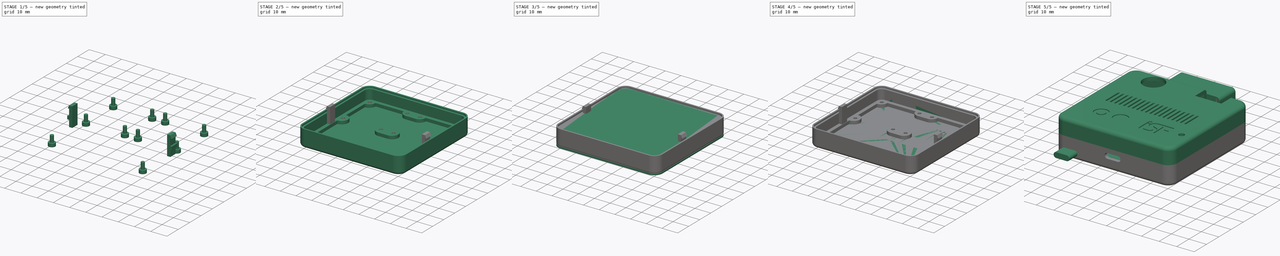
[diagram: build sequence overview — one tinted view per stage of 5, left to right]
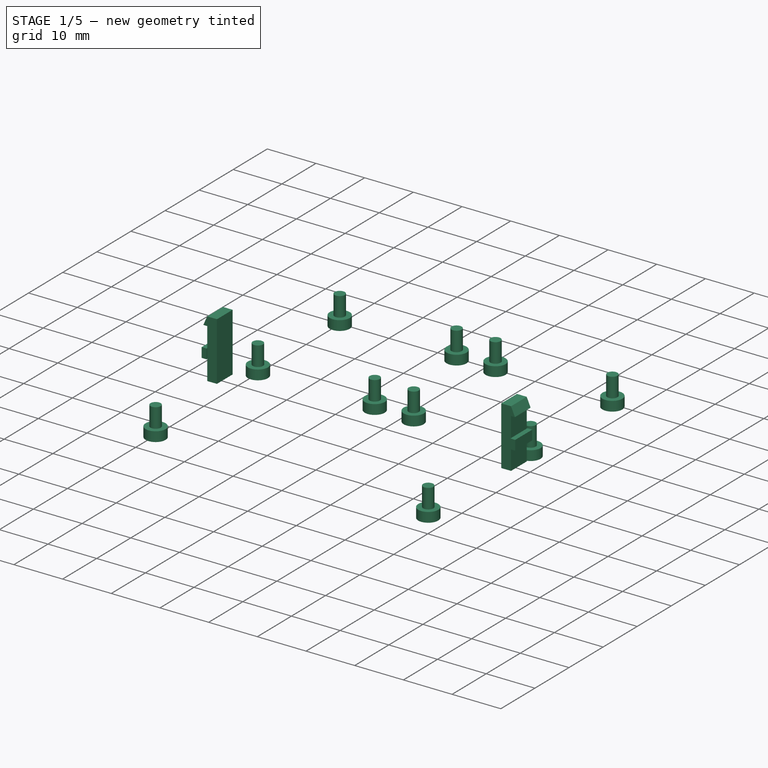
[diagram: stage 1 of 5 — iso view after this stage's code; geometry added in this stage tinted green]
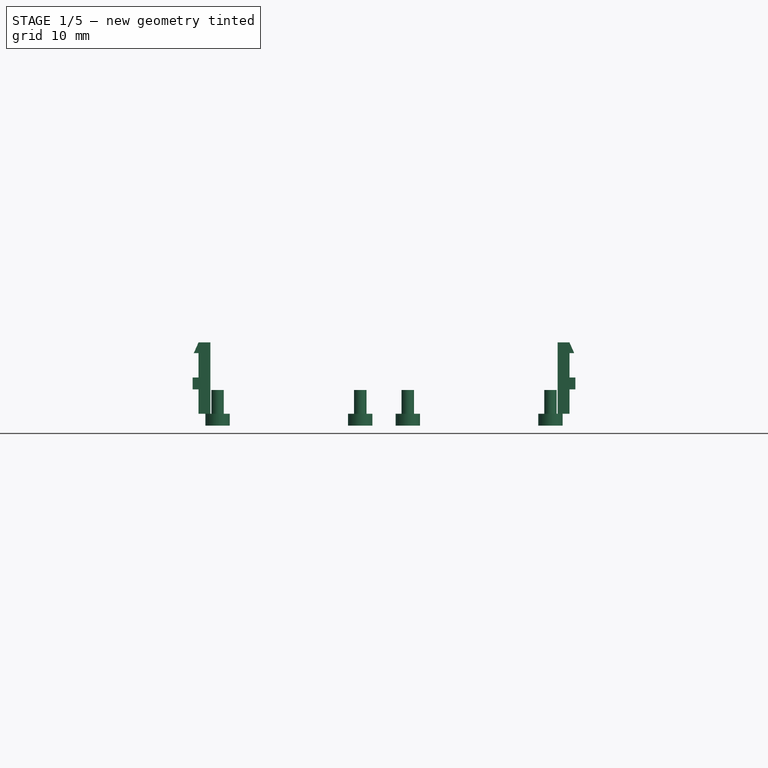
[diagram: stage 1 of 5 — front view after this stage's code; geometry added in this stage tinted green]
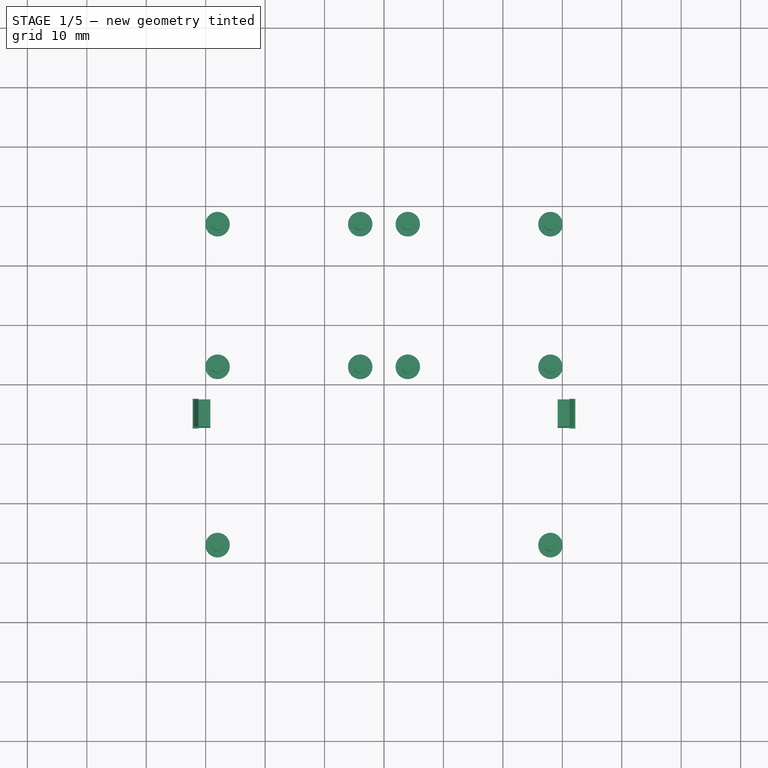
[diagram: stage 1 of 5 — top view after this stage's code; geometry added in this stage tinted green]
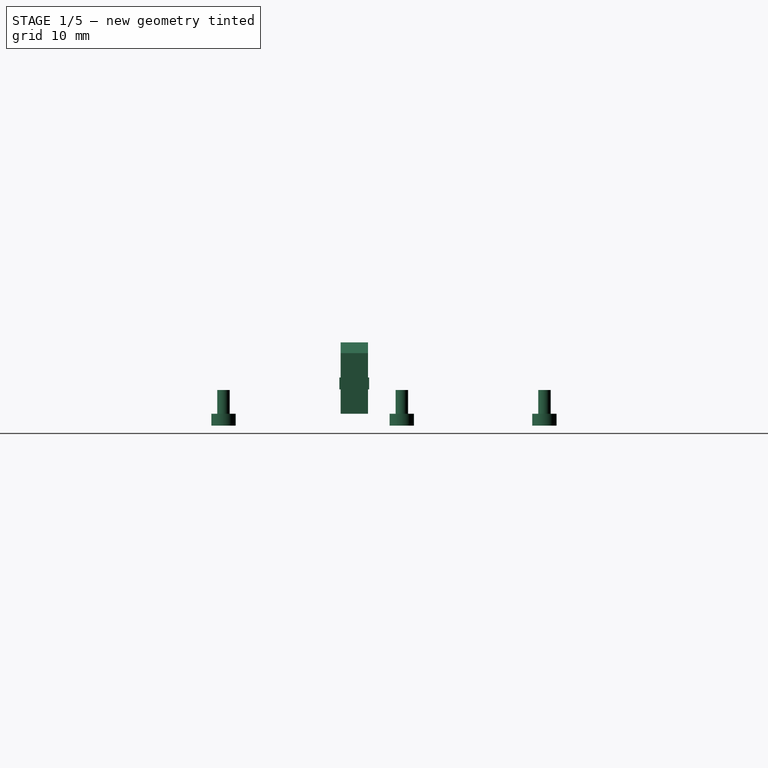
[diagram: stage 1 of 5 — right view after this stage's code; geometry added in this stage tinted green]
FCSTD DOCUMENT  (FreeCAD 0.21R33771 (Git))
Label: SensorBoard
License: Creative Commons Attribution-ShareAlike 4.0
LicenseURL: https://creativecommons.org/licenses/by-sa/4.0/
objects: Sketcher::SketchObject×16, PartDesign::Pad×15, PartDesign::Body×14, Part::Cut×12, Part::MultiFuse×10, Part::FeaturePython×10, PartDesign::Fillet×5, Part::Feature×5, Part::Extrusion×5, Part::Mirroring×3, Part::Box×2, Part::Cylinder×2, Spreadsheet::Sheet×1, PartDesign::Pocket×1, Part::Compound×1
note: 120 computed .brp shape members not serialized (recipe doc carries the construction recipe); baked Part::Feature solids carry a one-line shape summary decoded from their .brp

FEATURE [Sketcher::SketchObject] Sketch003
  FullyConstrained = true
  MapMode = 5
  Support = -> [XY_Plane003]
  expr: Constraints[1] = Spreadsheet.ScrewHeadDiameter
  sketch-geometry (1):
    g0: Circle CenterX=0 CenterY=0 CenterZ=0 NormalX=0 NormalY=0 NormalZ=1 AngleXU=0 Radius=2.05
  constraints (2):
    c: Coincident(g0,g-1)
    c: Diameter(g0) = 4.1
FEATURE [PartDesign::Pad] Pad003
  Direction = (1,1,1)
  Length = 2
  Length2 = 100
  Profile = -> Sketch003
  Type = 0
  expr: Length = Spreadsheet.ScrewHeadDepth
FEATURE [Sketcher::SketchObject] Sketch004
  FullyConstrained = true
  MapMode = 5
  Placement = pos=(0,0,2) rot=(0,0,1;0rad)
  Support = -> [Pad003]
  expr: Constraints[1] = Spreadsheet.ScrewDiameter
  sketch-geometry (1):
    g0: Circle CenterX=0 CenterY=0 CenterZ=0 NormalX=0 NormalY=0 NormalZ=1 AngleXU=0 Radius=1.05
  constraints (2):
    c: Coincident(g0,g-1)
    c: Diameter(g0) = 2.1
FEATURE [PartDesign::Pad] Pad004
  BaseFeature = -> Pad003
  Direction = (1,1,1)
  Length = 4
  Length2 = 100
  Profile = -> Sketch004
  Type = 0
  expr: Length = Spreadsheet.ScrewLength
FEATURE [PartDesign::Body] Body009  label="BottomJointBody"
  Group = -> [Sketch010,Pad010]
  Origin = -> Origin009
  Placement = pos=(0,0,10.1) rot=(0,0,1;0rad)
  Tip = -> Pad010
  expr: .Placement.Base.z = Spreadsheet.HousingDepth / 2
FEATURE [Part::Box] Box  label="LockCutout1"
  AttacherType = Attacher::AttachEngine3D
  Height = 2
  Length = 1
  Placement = pos=(-32.2,-7.5,6.1) rot=(0,0,1;0rad)
  Width = 5
  expr: .Placement.Base.x = -(Spreadsheet.HousingWidth / 2 - Spreadsheet.WallThickness + Spreadsheet.LockDepth)
  expr: .Placement.Base.y = -(Spreadsheet.LockYOffset + Spreadsheet.LockWidth / 2)
  expr: .Placement.Base.z = Spreadsheet.LockZPosition
  expr: Height = Spreadsheet.LockHeight
  expr: Length = Spreadsheet.LockDepth
  expr: Width = Spreadsheet.LockWidth
FEATURE [PartDesign::Body] Body011  label="TopBaseBody"
  Group = -> [Sketch012,Pad012,Fillet003,Fillet004,Sketch013,Pocket]
  Origin = -> Origin011
  Tip = -> Pocket
FEATURE [Sketcher::SketchObject] MirroredSketch
  FullyConstrained = true
  Placement = pos=(0,0,0) rot=(1,0,0;1.5708rad)
  expr: Constraints[10] = Spreadsheet.HousingDepth / 2 - Spreadsheet.WallThickness + 2 * Spreadsheet.LockHeight - Spreadsheet.LockTolerance / 2
  expr: Constraints[11] = Spreadsheet.LockHeight - Spreadsheet.LockTolerance
  expr: Constraints[14] = Spreadsheet.LockDepth - Spreadsheet.LockTolerance
  sketch-geometry (6):
    g0: LineSegment StartX=0 StartY=10.2 StartZ=0 EndX=0.8 EndY=10.2 EndZ=0
    g1: LineSegment StartX=0.8 StartY=10.2 StartZ=0 EndX=0 EndY=12 EndZ=0
    g2: LineSegment StartX=0 StartY=12 StartZ=0 EndX=-2 EndY=12 EndZ=0
    g3: LineSegment StartX=-2 StartY=12 StartZ=0 EndX=-2 EndY=0 EndZ=0
    g4: LineSegment StartX=-2 StartY=0 StartZ=0 EndX=0 EndY=0 EndZ=0
    g5: LineSegment StartX=0 StartY=0 StartZ=0 EndX=0 EndY=10.2 EndZ=0
  constraints (17):
    c: Horizontal(g0)
    c: Coincident(g1,g0)
    c: Coincident(g2,g1)
    c: Horizontal(g2)
    c: Coincident(g3,g2)
    c: Vertical(g3)
    c: Horizontal(g4)
    c: Coincident(g5,g4)
    c: Coincident(g5,g0)
    c: Coincident(g4,g3)
    c: DistanceY(g3,g3) = 12
    c: DistanceY(g0,g1) = 1.8
    c: Coincident(g4,g-1)
    c: DistanceX(g4,g4) = 2
    c: DistanceX(g0,g0) = 0.8
    c: Vertical(g5)
    c: PointOnObject(g1,g-2)
FEATURE [PartDesign::Pad] Pad013
  Direction = (1,1,1)
  Length = 4.6
  Length2 = 100
  Placement = pos=(0,0,0) rot=(1,0,0;1.5708rad)
  Profile = -> MirroredSketch
  Type = 0
  expr: Length = Spreadsheet.LockWidth - 2 * Spreadsheet.LockTolerance
FEATURE [PartDesign::Body] Body015  label="VentilationBody001"
  Group = -> [Sketch015,Pad016]
  Origin = -> Origin015
  Tip = -> Pad016
FEATURE [Part::FeaturePython] Array006  label="TopVentilationArray"  # Draft array (typed FeaturePython)
  AlwaysSyncPlacement = false
  Angle = 360
  ArrayType = 0
  Axis = (0,0,1)
  Base = -> Body015
  Center = (0,0,0)
  Count = 19
  ExpandArray = false
  Fuse = false
  IntervalAxis = (0,0,0)
  IntervalX = (2.5,0,0)
  IntervalY = (0,0,0)
  IntervalZ = (0,0,100)
  NumberCircles = 3
  NumberPolar = 5
  NumberX = 19
  NumberY = 1
  NumberZ = 1
  Placement = pos=(-22.5,0,0) rot=(0,0,1;0rad)
  PlacementList = 19 placements: arithmetic series from (0,0,0) step (2.5,0,0) to (45,0,0)
  RadialDistance = 50
  ScaleList = (19) [(1,1,1),(1,1,1),(1,1,1),(1,1,1),(1,1,1),(1,1,1),(1,1,1),(1,1,1),(1,1,1),(1,1,1),(1,1,1),(1,1,1),(1,1,1),(1,1,1),(1,1,1),(1,1,1),(1,1,1),(1,1,1),+1 more]
  Symmetry = 1
  TangentialDistance = 25
FEATURE [Part::FeaturePython] Point  # WARN: FeaturePython — macro-defined, semantics opaque (R4)
  Placement = pos=(-28,-27,0) rot=(0,0,1;0rad)
  X = -28
  Y = -27
  Z = 0
FEATURE [Part::FeaturePython] Point001  # WARN: FeaturePython — macro-defined, semantics opaque (R4)
  Placement = pos=(-28,3,0) rot=(0,0,1;0rad)
  X = -28
  Y = 3
  Z = 0
FEATURE [Part::FeaturePython] Point002  # WARN: FeaturePython — macro-defined, semantics opaque (R4)
  Placement = pos=(-28,27,0) rot=(0,0,1;0rad)
  X = -28
  Y = 27
  Z = 0
FEATURE [Part::FeaturePython] Point003  # WARN: FeaturePython — macro-defined, semantics opaque (R4)
  Placement = pos=(-4,27,0) rot=(0,0,1;0rad)
  X = -4
  Y = 27
  Z = 0
FEATURE [Part::FeaturePython] Point004  # WARN: FeaturePython — macro-defined, semantics opaque (R4)
  Placement = pos=(4,27,0) rot=(0,0,1;0rad)
  X = 4
  Y = 27
  Z = 0
FEATURE [Part::FeaturePython] Point005  # WARN: FeaturePython — macro-defined, semantics opaque (R4)
  Placement = pos=(-4,3,0) rot=(0,0,1;0rad)
  X = -4
  Y = 3
  Z = 0
FEATURE [Part::FeaturePython] Point006  # WARN: FeaturePython — macro-defined, semantics opaque (R4)
  Placement = pos=(4,3,0) rot=(0,0,1;0rad)
  X = 4
  Y = 3
  Z = 0
FEATURE [Part::Compound] Compound  label="ScrewPointCompound"
  Links = -> [Point002,Point001,Point,Point003,Point004,Point006,Point005]
FEATURE [Part::FeaturePython] PointArray  label="ScrewPointArray"  # Draft array (typed FeaturePython)
  Base = -> Body003
  Count = 7
  PointObject = -> Compound
FEATURE [Part::Mirroring] Part__Mirroring  label="ScrewPointMirror"
  Base = (0,0,0)
  Normal = (1,0,0)
  Source = -> PointArray
FEATURE [Part::MultiFuse] Fusion008  label="ScrewFusion"
  Shapes = -> [PointArray,Part__Mirroring]
FEATURE [Part::Mirroring] Part__Mirroring001  label="LockCutout1 (Mirror #2)"
  Base = (0,0,0)
  Normal = (1,0,0)
  Source = -> Box
FEATURE [Part::MultiFuse] Fusion014  label="LockCutoutFusion"
  Shapes = -> [Box,Part__Mirroring001]
FEATURE [Part::Mirroring] Part__Mirroring002  label="TopLockBody (Mirror #3)"
  Base = (0,0,0)
  Normal = (1,0,0)
  Source = -> Body012
FEATURE [Part::MultiFuse] Fusion015  label="LockFusion"
  Shapes = -> [Part__Mirroring002,Body012]
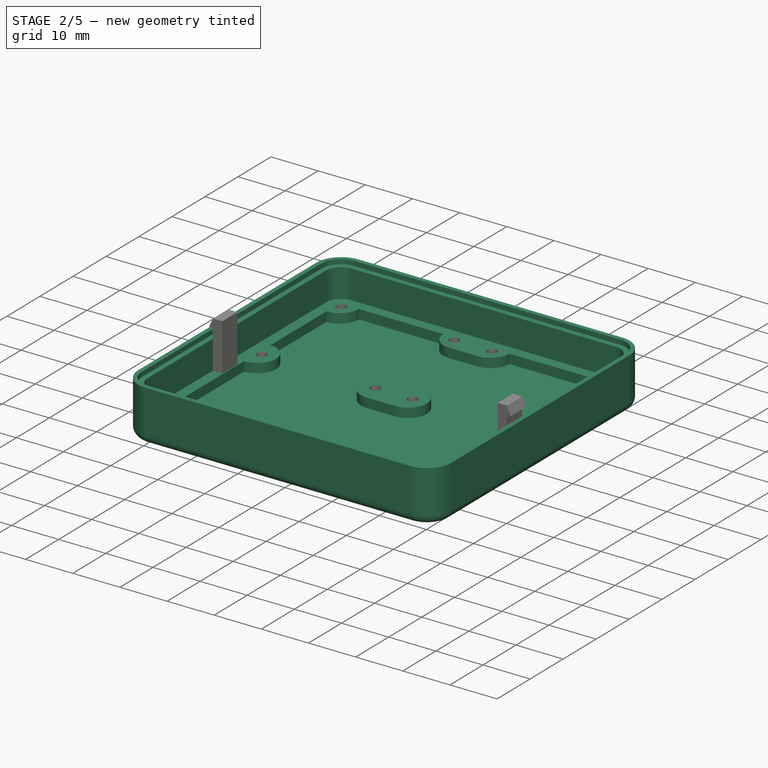
[diagram: stage 2 of 5 — iso view after this stage's code; geometry added in this stage tinted green]
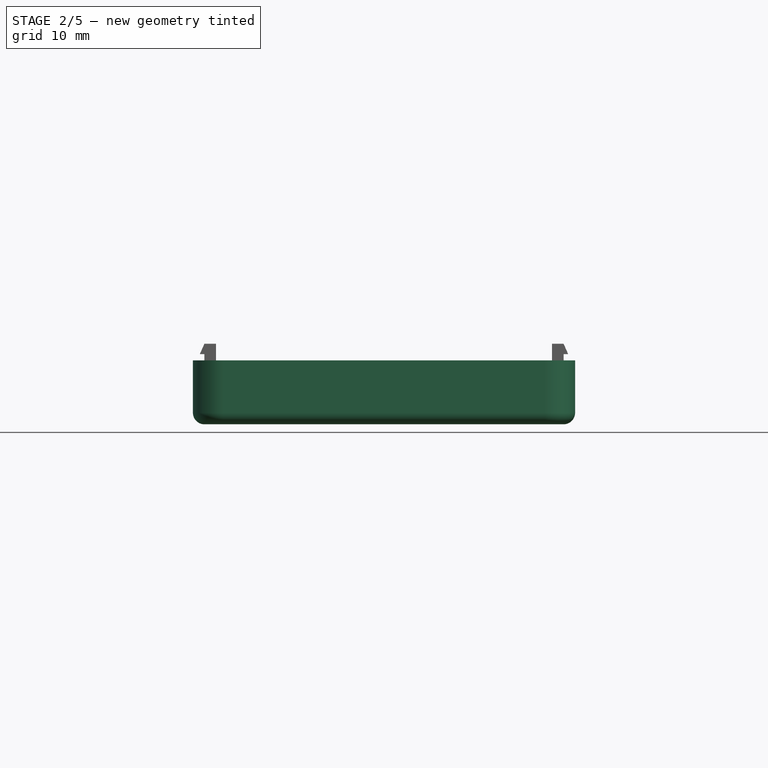
[diagram: stage 2 of 5 — front view after this stage's code; geometry added in this stage tinted green]
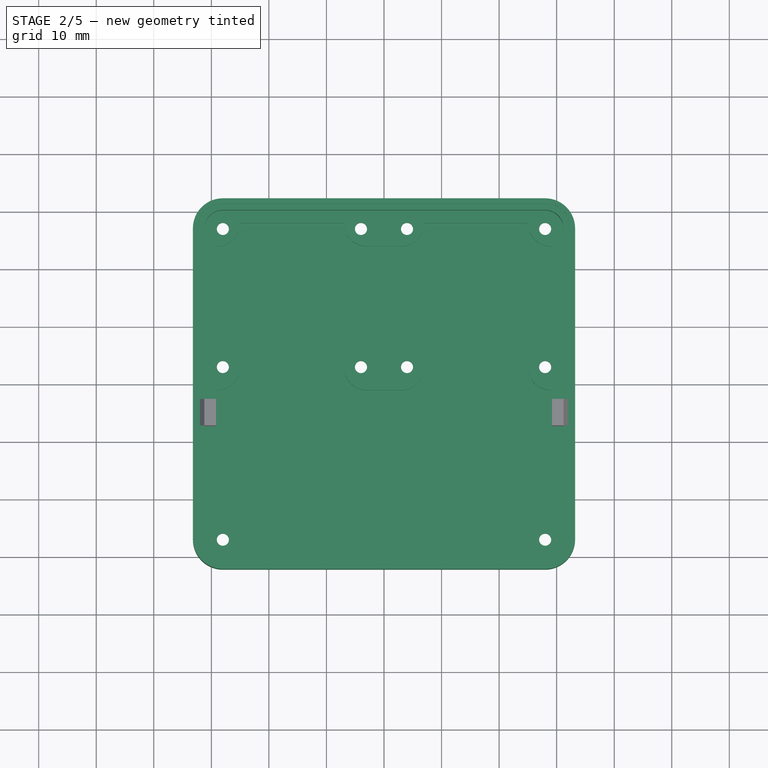
[diagram: stage 2 of 5 — top view after this stage's code; geometry added in this stage tinted green]
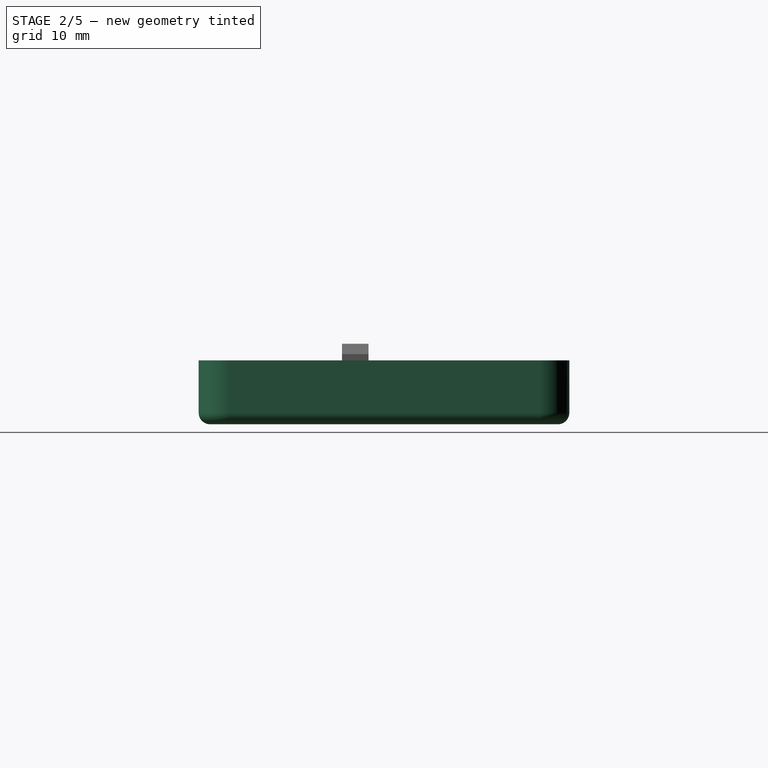
[diagram: stage 2 of 5 — right view after this stage's code; geometry added in this stage tinted green]
FEATURE [Spreadsheet::Sheet] Spreadsheet
  cells = A1='Board Width; B1(BoardWidth)=62; A2='Board Height; B2(BoardHeight)=60; A3='Board Thickness; B3(BoardThickness)=1.7; A4='Board Tolerance; B4(BoardTolerance)=0.2; A5='Board Cutout Width; B5(BoardCutoutWidth)==BoardWidth + 2 * BoardTolerance; A6='Board Cutout Height; B6(BoardCutoutHeight)==BoardHeight + 2 * BoardTolerance; A7='Board Corner Radius; B7(BoardCornerRadius)=3; A9='Component Height; B9(ComponentHeight)=12.5; A11='Sink Width; B11(SinkWidth)==BoardWidth - 4; A12='Sink Height; B12(SinkHeight)==BoardHeight - 4; A13='Sink Depth; B13(SinkDepth)=2; A15='Wall Thickness; B15(WallThickness)=2; A16='Wall Joint Height; B16(WallJointHeight)=1; A17='Wall Joint Width; B17(WallJointWidth)=0.9; A19='Housing Width; B19(HousingWidth)==BoardCutoutWidth + 2 * WallThickness; A20='Housing Height; B20(HousingHeight)==BoardCutoutHeight + 2 * WallThickness; A21='Housing Depth; B21(HousingDepth)==WallThickness + SinkDepth + BoardThickness + ComponentHeight + WallThickness; A23='Screw Diameter; B23(ScrewDiameter)=2.1; A24='Screw Length; B24(ScrewLength)=4; A25='Screw Head Diameter; B25(ScrewHeadDiameter)=4.1; A26='Screw Head Depth; B26(ScrewHeadDepth)=2; A28='Lock Width; B28(LockWidth)=5; A29='Lock Height; B29(LockHeight)=2; A30='Lock Depth; B30(LockDepth)=1; A31='Lock Tolerance; B31(LockTolerance)=0.2; A32='Lock Y Offset; B32(LockYOffset)=5; A33='Lock Z Position; B33(LockZPosition)==HousingDepth / 2 - 2 * LockHeight
FEATURE [Sketcher::SketchObject] Sketch
  FullyConstrained = true
  MapMode = 5
  Support = -> [XY_Plane]
  expr: Constraints[8] = Spreadsheet.HousingWidth
  expr: Constraints[9] = Spreadsheet.HousingHeight
  sketch-geometry (4):
    g0: LineSegment StartX=-33.2 StartY=32.2 StartZ=0 EndX=33.2 EndY=32.2 EndZ=0
    g1: LineSegment StartX=33.2 StartY=32.2 StartZ=0 EndX=33.2 EndY=-32.2 EndZ=0
    g2: LineSegment StartX=33.2 StartY=-32.2 StartZ=0 EndX=-33.2 EndY=-32.2 EndZ=0
    g3: LineSegment StartX=-33.2 StartY=-32.2 StartZ=0 EndX=-33.2 EndY=32.2 EndZ=0
  constraints (11):
    c: Coincident(g0,g1)
    c: Coincident(g1,g2)
    c: Coincident(g2,g3)
    c: Coincident(g3,g0)
    c: Horizontal(g0)
    c: Horizontal(g2)
    c: Vertical(g1)
    c: Vertical(g3)
    c: DistanceX(g0,g0) = 66.4
    c: DistanceY(g1,g1) = 64.4
    c: Symmetric(g0,g2,g-1)
FEATURE [PartDesign::Pad] Pad
  Direction = (1,1,1)
  Length = 10.1
  Length2 = 100
  Profile = -> Sketch
  Type = 0
  expr: Length = Spreadsheet.HousingDepth / 2
FEATURE [PartDesign::Fillet] Fillet
  Base = -> Pad [Edge8,Edge5,Edge2,Edge1]
  BaseFeature = -> Pad
  Radius = 5.2
  SupportTransform = false
  UseAllEdges = false
  expr: Radius = Spreadsheet.BoardCornerRadius + Spreadsheet.BoardTolerance + Spreadsheet.WallThickness
FEATURE [PartDesign::Fillet] Fillet001
  Base = -> Fillet [Edge9,Edge10,Edge5,Edge6]
  BaseFeature = -> Fillet
  Radius = 2
  SupportTransform = false
  UseAllEdges = false
FEATURE [PartDesign::Body] Body  label="BottomBody"
  Group = -> [Sketch,Pad,Fillet,Fillet001]
  Origin = -> Origin
  Tip = -> Fillet001
FEATURE [Sketcher::SketchObject] Sketch001
  FullyConstrained = true
  MapMode = 5
  Support = -> [XY_Plane001]
  expr: Constraints[8] = Spreadsheet.BoardCutoutWidth
  expr: Constraints[9] = Spreadsheet.BoardCutoutHeight
  sketch-geometry (4):
    g0: LineSegment StartX=-31.2 StartY=30.2 StartZ=0 EndX=31.2 EndY=30.2 EndZ=0
    g1: LineSegment StartX=31.2 StartY=30.2 StartZ=0 EndX=31.2 EndY=-30.2 EndZ=0
    g2: LineSegment StartX=31.2 StartY=-30.2 StartZ=0 EndX=-31.2 EndY=-30.2 EndZ=0
    g3: LineSegment StartX=-31.2 StartY=-30.2 StartZ=0 EndX=-31.2 EndY=30.2 EndZ=0
  constraints (11):
    c: Coincident(g0,g1)
    c: Coincident(g1,g2)
    c: Coincident(g2,g3)
    c: Coincident(g3,g0)
    c: Horizontal(g0)
    c: Horizontal(g2)
    c: Vertical(g1)
    c: Vertical(g3)
    c: DistanceX(g0,g0) = 62.4
    c: DistanceY(g1,g1) = 60.4
    c: Symmetric(g0,g2,g-1)
FEATURE [PartDesign::Pad] Pad001
  Direction = (1,1,1)
  Length = 6.1
  Length2 = 100
  Profile = -> Sketch001
  Type = 0
  expr: Length = Spreadsheet.HousingDepth / 2 - Spreadsheet.WallThickness - Spreadsheet.SinkDepth
FEATURE [PartDesign::Fillet] Fillet002
  Base = -> Pad001 [Edge8,Edge5,Edge2,Edge1]
  BaseFeature = -> Pad001
  Radius = 3.2
  SupportTransform = false
  UseAllEdges = false
  expr: Radius = Spreadsheet.BoardCornerRadius + Spreadsheet.BoardTolerance
FEATURE [PartDesign::Body] Body001  label="BoardCutoutBody"
  Group = -> [Sketch001,Pad001,Fillet002]
  Origin = -> Origin001
  Placement = pos=(0,0,4) rot=(0,0,1;0rad)
  Tip = -> Fillet002
  expr: .Placement.Base.z = Spreadsheet.WallThickness + Spreadsheet.SinkDepth
FEATURE [Part::Cut] Cut  label="BottomBoardCut"
  Base = -> Body
  Tool = -> Body001
FEATURE [Sketcher::SketchObject] Sketch002
  FullyConstrained = true
  MapMode = 5
  Support = -> [XY_Plane002]
  expr: Constraints[15] = Spreadsheet.SinkWidth
  expr: Constraints[4] = Spreadsheet.SinkHeight
  sketch-geometry (20):
    g0: ArcOfCircle CenterX=29 CenterY=28 CenterZ=0 NormalX=0 NormalY=0 NormalZ=1 AngleXU=0 Radius=4 StartAngle=3.14159 EndAngle=4.71239
    g1: ArcOfCircle CenterX=29 CenterY=-28 CenterZ=0 NormalX=0 NormalY=0 NormalZ=1 AngleXU=0 Radius=4 StartAngle=1.5708 EndAngle=3.14159
    g2: ArcOfCircle CenterX=-29 CenterY=28 CenterZ=0 NormalX=0 NormalY=0 NormalZ=1 AngleXU=0 Radius=4 StartAngle=4.71239 EndAngle=6.28319
    g3: LineSegment StartX=25 StartY=-28 StartZ=0 EndX=-25 EndY=-28 EndZ=0
    g4: ArcOfCircle CenterX=-29 CenterY=-28 CenterZ=0 NormalX=0 NormalY=0 NormalZ=1 AngleXU=0 Radius=4 StartAngle=0 EndAngle=1.5708
    g5: ArcOfCircle CenterX=-29 CenterY=3 CenterZ=0 NormalX=0 NormalY=0 NormalZ=1 AngleXU=0 Radius=4 StartAngle=4.71239 EndAngle=7.85398
    g6: LineSegment StartX=-29 StartY=24 StartZ=0 EndX=-29 EndY=7 EndZ=0
    g7: LineSegment StartX=-29 StartY=-1 StartZ=0 EndX=-29 EndY=-24 EndZ=0
    g8: ArcOfCircle CenterX=29 CenterY=3 CenterZ=0 NormalX=0 NormalY=0 NormalZ=1 AngleXU=0 Radius=4 StartAngle=1.5708 EndAngle=4.71239
    g9: LineSegment StartX=29 StartY=24 StartZ=0 EndX=29 EndY=7 EndZ=0
    g10: LineSegment StartX=29 StartY=-1 StartZ=0 EndX=29 EndY=-24 EndZ=0
    g11: ArcOfCircle CenterX=-3 CenterY=28 CenterZ=0 NormalX=0 NormalY=0 NormalZ=1 AngleXU=0 Radius=4 StartAngle=3.14159 EndAngle=4.71239
    g12: ArcOfCircle CenterX=3 CenterY=28 CenterZ=0 NormalX=0 NormalY=0 NormalZ=1 AngleXU=0 Radius=4 StartAngle=4.71239 EndAngle=6.28319
    g13: LineSegment StartX=-3 StartY=24 StartZ=0 EndX=3 EndY=24 EndZ=0
    g14: LineSegment StartX=-25 StartY=28 StartZ=0 EndX=-7 EndY=28 EndZ=0
    g15: LineSegment StartX=7 StartY=28 StartZ=0 EndX=25 EndY=28 EndZ=0
    g16: ArcOfCircle CenterX=-3 CenterY=3 CenterZ=0 NormalX=0 NormalY=0 NormalZ=1 AngleXU=0 Radius=4 StartAngle=1.5708 EndAngle=4.71239
    g17: ArcOfCircle CenterX=3 CenterY=3 CenterZ=0 NormalX=0 NormalY=0 NormalZ=1 AngleXU=0 Radius=4 StartAngle=4.71239 EndAngle=7.85398
    g18: LineSegment StartX=-3 StartY=-1 StartZ=0 EndX=3 EndY=-1 EndZ=0
    g19: LineSegment StartX=-3 StartY=7 StartZ=0 EndX=3 EndY=7 EndZ=0
  constraints (62):
    c: Radius(g0) = 4
    c: Equal(g1,g0)
    c: Equal(g2,g0)
    c: Coincident(g3,g1)
    c: DistanceY(g1,g0) = 56
    c: Symmetric(g1,g2,g-1)
    c: Horizontal(g3)
    c: Vertical(g1,g1)
    c: Horizontal(g1,g1)
    c: Vertical(g0,g0)
    c: Horizontal(g0,g0)
    c: Horizontal(g2,g2)
    c: Vertical(g2,g2)
    c: Coincident(g4,g3)
    c: Equal(g4,g0)
    c: DistanceX(g4,g1) = 58
    c: Horizontal(g4,g3)
    c: Vertical(g4,g4)
    c: Equal(g5,g0)
    c: Coincident(g6,g2)
    c: Coincident(g6,g5)
    c: Vertical(g6)
    c: Coincident(g7,g5)
    c: Coincident(g7,g4)
    c: Vertical(g7)
    c: DistanceY(g-1,g5) = 3
    c: Equal(g8,g0)
    c: DistanceY(g-1,g8) = 3
    c: Coincident(g9,g8)
    c: Vertical(g9)
    c: Coincident(g10,g8)
    c: Vertical(g10)
    c: Vertical(g8,g8)
    c: Vertical(g5,g5)
    c: Vertical(g5,g5)
    c: Vertical(g8,g8)
    c: Coincident(g10,g1)
    c: Coincident(g9,g0)
    c: Coincident(g13,g11)
    c: Coincident(g13,g12)
    c: Equal(g11,g0)
    c: Symmetric(g11,g12,g-2)
    c: DistanceX(g11,g12) = 6
    c: Symmetric(g12,g11,g-2)
    c: Vertical(g11,g11)
    c: Coincident(g14,g2)
    c: Coincident(g14,g11)
    c: Horizontal(g14)
    c: Coincident(g15,g12)
    c: Coincident(g15,g0)
    c: Horizontal(g15)
    c: Equal(g14,g15)
    c: Horizontal(g11,g11)
    c: Tangent(g16,g19) = 1.5708
    c: Tangent(g16,g18) = -1.5708
    c: Tangent(g18,g17) = -1.5708
    c: Tangent(g19,g17) = 1.5708
    c: Horizontal(g18)
    c: Horizontal(g8,g17)
    c: Equal(g17,g8)
    c: Symmetric(g17,g16,g-2)
    c: DistanceX(g16,g17) = 6
FEATURE [PartDesign::Pad] Pad002
  Direction = (1,1,1)
  Length = 2
  Length2 = 100
  Profile = -> Sketch002
  Type = 0
  expr: Length = Spreadsheet.SinkDepth
FEATURE [PartDesign::Body] Body002  label="BottomSinkBody"
  Group = -> [Sketch002,Pad002]
  Origin = -> Origin002
  Placement = pos=(0,0,2) rot=(0,0,1;0rad)
  Tip = -> Pad002
  expr: .Placement.Base.z = Spreadsheet.WallThickness
FEATURE [Part::Cut] Cut001  label="BottomSinkCut"
  Base = -> Cut
  Tool = -> Body002
FEATURE [PartDesign::Body] Body007  label="UsbCutoutBody"
  Group = -> [Sketch008,Pad008]
  Origin = -> Origin007
  Placement = pos=(0,-30.2,7.2) rot=(0,0,1;0rad)
  Tip = -> Pad008
  expr: .Placement.Base.x = 0
  expr: .Placement.Base.y = -(Spreadsheet.BoardHeight / 2 + Spreadsheet.BoardTolerance)
  expr: .Placement.Base.z = 1.5 + Spreadsheet.WallThickness + Spreadsheet.SinkDepth + Spreadsheet.BoardThickness
FEATURE [Sketcher::SketchObject] Sketch010
  FullyConstrained = true
  MapMode = 5
  Support = -> [XY_Plane009]
  expr: Constraints[12] = Spreadsheet.BoardCornerRadius + Spreadsheet.BoardTolerance + Spreadsheet.WallThickness
  expr: Constraints[16] = Spreadsheet.BoardCutoutHeight + 2 * Spreadsheet.WallThickness
  expr: Constraints[17] = Spreadsheet.BoardCutoutWidth + 2 * Spreadsheet.WallThickness
  expr: Constraints[31] = Spreadsheet.BoardCornerRadius + Spreadsheet.BoardTolerance + Spreadsheet.WallJointWidth
  expr: Constraints[35] = Spreadsheet.HousingHeight - 2 * Spreadsheet.WallJointWidth
  expr: Constraints[36] = Spreadsheet.HousingWidth - 2 * Spreadsheet.WallJointWidth
  sketch-geometry (16):
    g0: LineSegment StartX=-28 StartY=32.2 StartZ=0 EndX=28 EndY=32.2 EndZ=0
    g1: LineSegment StartX=33.2 StartY=27 StartZ=0 EndX=33.2 EndY=-27 EndZ=0
    g2: LineSegment StartX=28 StartY=-32.2 StartZ=0 EndX=-28 EndY=-32.2 EndZ=0
    g3: LineSegment StartX=-33.2 StartY=-27 StartZ=0 EndX=-33.2 EndY=27 EndZ=0
    g4: ArcOfCircle CenterX=-28 CenterY=27 CenterZ=0 NormalX=0 NormalY=0 NormalZ=1 AngleXU=0 Radius=5.2 StartAngle=1.5708 EndAngle=3.14159
    g5: ArcOfCircle CenterX=28 CenterY=27 CenterZ=0 NormalX=0 NormalY=0 NormalZ=1 AngleXU=0 Radius=5.2 StartAngle=2e-16 EndAngle=1.5708
    g6: ArcOfCircle CenterX=28 CenterY=-27 CenterZ=0 NormalX=0 NormalY=0 NormalZ=1 AngleXU=0 Radius=5.2 StartAngle=4.71239 EndAngle=6.28319
    g7: ArcOfCircle CenterX=-28 CenterY=-27 CenterZ=0 NormalX=0 NormalY=0 NormalZ=1 AngleXU=0 Radius=5.2 StartAngle=3.14159 EndAngle=4.71239
    g8: LineSegment StartX=-28.2 StartY=31.3 StartZ=0 EndX=28.2 EndY=31.3 EndZ=0
    g9: LineSegment StartX=32.3 StartY=27.2 StartZ=0 EndX=32.3 EndY=-27.2 EndZ=0
    g10: LineSegment StartX=28.2 StartY=-31.3 StartZ=0 EndX=-28.2 EndY=-31.3 EndZ=0
    g11: LineSegment StartX=-32.3 StartY=-27.2 StartZ=0 EndX=-32.3 EndY=27.2 EndZ=0
    g12: ArcOfCircle CenterX=-28.2 CenterY=-27.2 CenterZ=0 NormalX=0 NormalY=0 NormalZ=1 AngleXU=0 Radius=4.1 StartAngle=3.14159 EndAngle=4.71239
    g13: ArcOfCircle CenterX=28.2 CenterY=-27.2 CenterZ=0 NormalX=0 NormalY=0 NormalZ=1 AngleXU=0 Radius=4.1 StartAngle=4.71239 EndAngle=6.28319
    g14: ArcOfCircle CenterX=28.2 CenterY=27.2 CenterZ=0 NormalX=0 NormalY=0 NormalZ=1 AngleXU=0 Radius=4.1 StartAngle=-9e-16 EndAngle=1.5708
    g15: ArcOfCircle CenterX=-28.2 CenterY=27.2 CenterZ=0 NormalX=0 NormalY=0 NormalZ=1 AngleXU=0 Radius=4.1 StartAngle=1.5708 EndAngle=3.14159
  constraints (38):
    c: Horizontal(g0)
    c: Horizontal(g2)
    c: Vertical(g1)
    c: Vertical(g3)
    c: Tangent(g0,g4) = 1.5708
    c: Tangent(g3,g4) = 1.5708
    c: Tangent(g0,g5) = 1.5708
    c: Tangent(g1,g5) = 1.5708
    c: Tangent(g1,g6) = 1.5708
    c: Tangent(g2,g6) = 1.5708
    c: Tangent(g2,g7) = 1.5708
    c: Tangent(g3,g7) = 1.5708
    c: Radius(g4) = 5.2
    c: Equal(g5,g4)
    c: Equal(g6,g4)
    c: Equal(g7,g4)
    c: DistanceY(g2,g0) = 64.4
    c: DistanceX(g3,g1) = 66.4
    c: Symmetric(g5,g7,g-1)
    c: Horizontal(g8)
    c: Horizontal(g10)
    c: Vertical(g9)
    c: Vertical(g11)
    c: Tangent(g10,g12) = 1.5708
    c: Tangent(g11,g12) = 1.5708
    c: Tangent(g9,g13) = 1.5708
    c: Tangent(g10,g13) = 1.5708
    c: Tangent(g8,g14) = 1.5708
    c: Tangent(g9,g14) = 1.5708
    c: Tangent(g8,g15) = 1.5708
    c: Tangent(g11,g15) = 1.5708
    c: Radius(g14) = 4.1
    c: Equal(g15,g14)
    c: Equal(g13,g14)
    c: Equal(g12,g14)
    c: DistanceY(g10,g8) = 62.6
    c: DistanceX(g11,g9) = 64.6
    c: Symmetric(g14,g12,g-1)
FEATURE [PartDesign::Pad] Pad010
  Direction = (1,1,1)
  Length = 1
  Length2 = 100
  Profile = -> Sketch010
  Type = 0
  expr: Length = Spreadsheet.WallJointHeight
FEATURE [Part::Cut] Cut015  label="BottomScrewCut"
  Base = -> Cut001
  Tool = -> Fusion008
FEATURE [Part::MultiFuse] Fusion009  label="BottomJointFusion"
  Shapes = -> [Cut015,Body009]
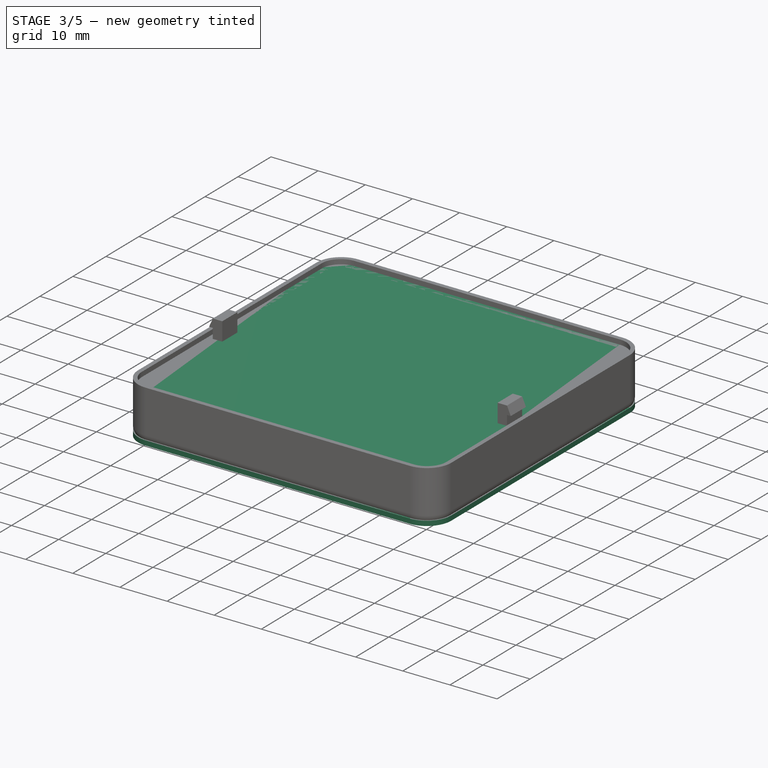
[diagram: stage 3 of 5 — iso view after this stage's code; geometry added in this stage tinted green]
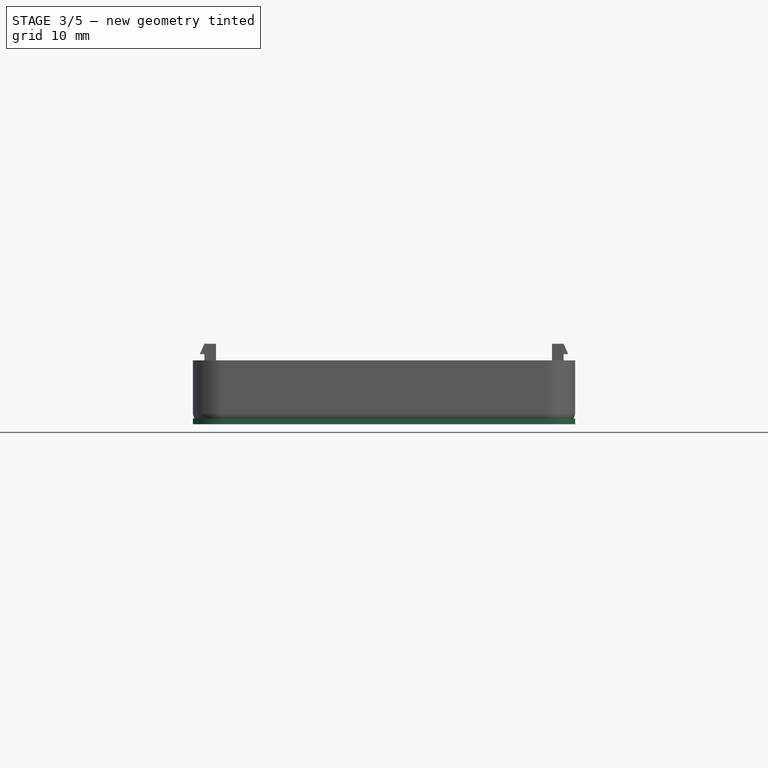
[diagram: stage 3 of 5 — front view after this stage's code; geometry added in this stage tinted green]
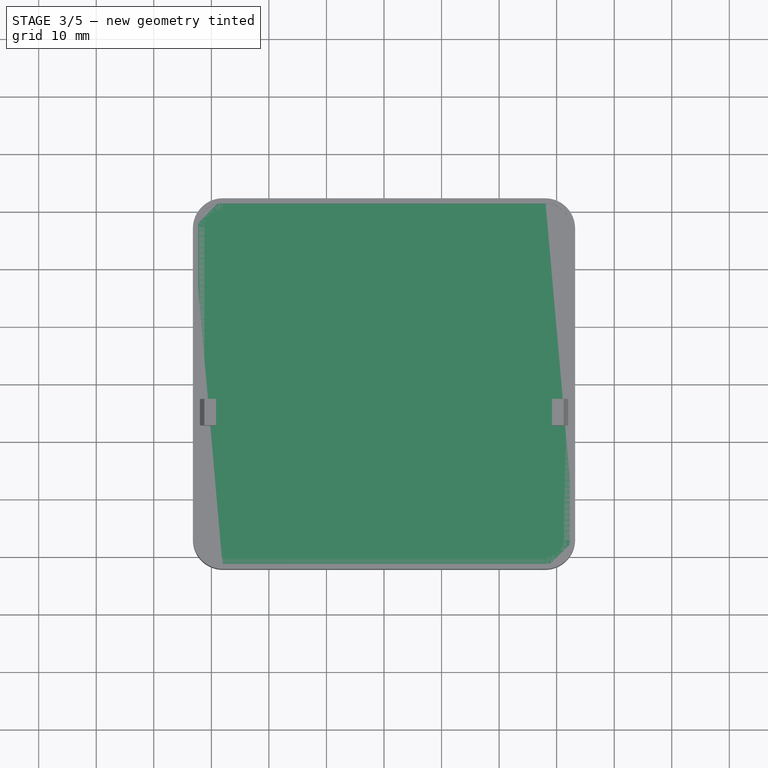
[diagram: stage 3 of 5 — top view after this stage's code; geometry added in this stage tinted green]
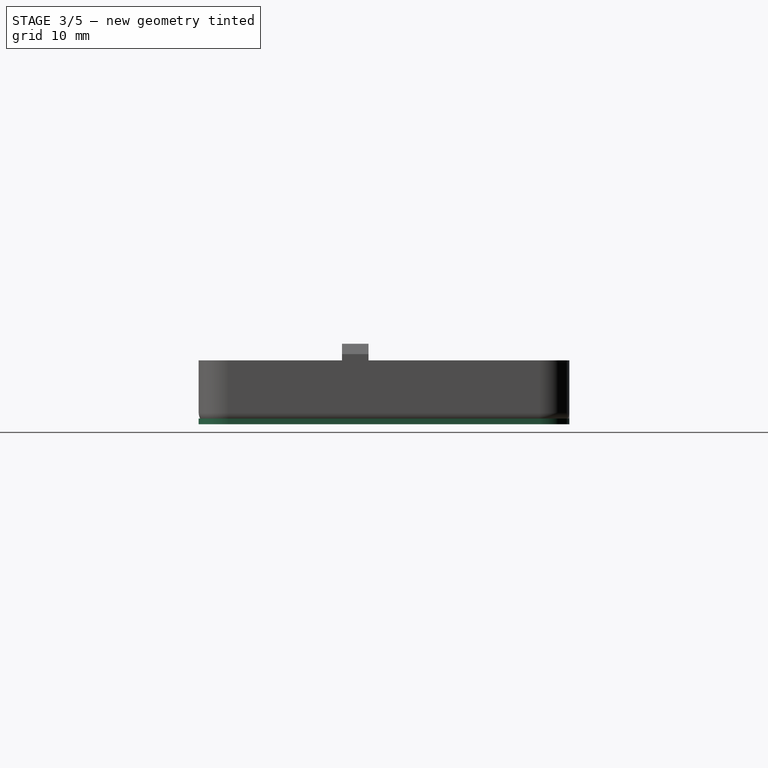
[diagram: stage 3 of 5 — right view after this stage's code; geometry added in this stage tinted green]
FEATURE [Sketcher::SketchObject] Sketch008
  FullyConstrained = true
  MapMode = 5
  Placement = pos=(0,0,0) rot=(1,0,0;1.5708rad)
  Support = -> [XZ_Plane007]
  sketch-geometry (4):
    g0: ArcOfCircle CenterX=-3 CenterY=5.05e-14 CenterZ=0 NormalX=0 NormalY=0 NormalZ=1 AngleXU=0 Radius=1.5 StartAngle=1.5708 EndAngle=4.71239
    g1: ArcOfCircle CenterX=3 CenterY=-5.05e-14 CenterZ=0 NormalX=0 NormalY=0 NormalZ=1 AngleXU=0 Radius=1.5 StartAngle=4.71239 EndAngle=7.85398
    g2: LineSegment StartX=-3 StartY=-1.5 StartZ=0 EndX=3 EndY=-1.5 EndZ=0
    g3: LineSegment StartX=-3 StartY=1.5 StartZ=0 EndX=3 EndY=1.5 EndZ=0
  constraints (9):
    c: Tangent(g0,g3) = 1.5708
    c: Tangent(g0,g2) = -1.5708
    c: Tangent(g2,g1) = -1.5708
    c: Tangent(g3,g1) = 1.5708
    c: Horizontal(g2)
    c: Equal(g0,g1)
    c: DistanceX(g0,g1) = 6
    c: Radius(g0) = 1.5
    c: Symmetric(g1,g0,g-1)
FEATURE [PartDesign::Pad] Pad008
  Direction = (1,1,1)
  Length = 2
  Length2 = 100
  Placement = pos=(0,0,0) rot=(1,0,0;1.5708rad)
  Profile = -> Sketch008
  Type = 0
  expr: Length = Spreadsheet.WallThickness
FEATURE [Sketcher::SketchObject] Sketch011
  FullyConstrained = true
  MapMode = 5
  Support = -> [XY_Plane010]
  sketch-geometry (4):
    g0: ArcOfCircle CenterX=0 CenterY=5 CenterZ=0 NormalX=0 NormalY=0 NormalZ=1 AngleXU=0 Radius=0.5 StartAngle=-1.8e-15 EndAngle=3.14159
    g1: ArcOfCircle CenterX=0 CenterY=-5 CenterZ=0 NormalX=0 NormalY=0 NormalZ=1 AngleXU=0 Radius=0.5 StartAngle=3.14159 EndAngle=6.28319
    g2: LineSegment StartX=-0.5 StartY=5 StartZ=0 EndX=-0.5 EndY=-5 EndZ=0
    g3: LineSegment StartX=0.5 StartY=5 StartZ=0 EndX=0.5 EndY=-5 EndZ=0
  constraints (9):
    c: Tangent(g0,g3) = 1.5708
    c: Tangent(g0,g2) = -1.5708
    c: Tangent(g2,g1) = -1.5708
    c: Tangent(g3,g1) = 1.5708
    c: Vertical(g2)
    c: Equal(g0,g1)
    c: DistanceX(g0,g0) = 1
    c: DistanceY(g1,g0) = 10
    c: Symmetric(g0,g1,g-1)
FEATURE [PartDesign::Pad] Pad011
  Direction = (1,1,1)
  Length = 2
  Length2 = 100
  Profile = -> Sketch011
  Type = 0
  expr: Length = Spreadsheet.WallThickness
FEATURE [PartDesign::Body] Body010  label="VentilationBody"
  Group = -> [Sketch011,Pad011]
  Origin = -> Origin010
  Tip = -> Pad011
FEATURE [Part::FeaturePython] Array001  label="BottomVentilationArray"  # Draft array (typed FeaturePython)
  AlwaysSyncPlacement = false
  Angle = 360
  ArrayType = 0
  Axis = (0,0,1)
  Base = -> Body010
  Center = (0,0,0)
  Count = 38
  ExpandArray = false
  Fuse = false
  IntervalAxis = (0,0,0)
  IntervalX = (2.5,0,0)
  IntervalY = (0,28,0)
  IntervalZ = (0,0,100)
  NumberCircles = 3
  NumberPolar = 5
  NumberX = 19
  NumberY = 2
  NumberZ = 1
  Placement = pos=(-22.5,-14,0) rot=(0,0,1;0rad)
  PlacementList = 38 placements: [(0,0,0),(0,28,0),(2.5,0,0),(2.5,28,0),(5,0,0),(5,28,0),(7.5,0,0),(7.5,28,0),(10,0,0),(10,28,0),(12.5,0,0),(12.5,28,0),(15,0,0),(15,28,0),(17.5,0,0),(17.5,28,0),(20,0,0),(20,28,0),(22.5,0,0),(22.5,28,0),(25,0,0),(25,28,0),(27.5,0,0),(27.5,28,0),(30,0,0),(30,28,0),(32.5,0,0),(32.5,28,0),(35,0,0),(35,28,0),(37.5,0,0),(37.5,28,0),(40,0,0),(40,28,0),(42.5,0,0),(42.5,28,0),(45,0,0),(45,28,0)]
  RadialDistance = 50
  ScaleList = (38) [(1,1,1),(1,1,1),(1,1,1),(1,1,1),(1,1,1),(1,1,1),(1,1,1),(1,1,1),(1,1,1),(1,1,1),(1,1,1),(1,1,1),(1,1,1),(1,1,1),(1,1,1),(1,1,1),(1,1,1),(1,1,1),+20 more]
  Symmetry = 1
  TangentialDistance = 25
FEATURE [Sketcher::SketchObject] Sketch012
  FullyConstrained = true
  MapMode = 5
  Support = -> [XY_Plane011]
  expr: Constraints[8] = Spreadsheet.HousingWidth
  expr: Constraints[9] = Spreadsheet.HousingHeight
  sketch-geometry (4):
    g0: LineSegment StartX=-33.2 StartY=32.2 StartZ=0 EndX=33.2 EndY=32.2 EndZ=0
    g1: LineSegment StartX=33.2 StartY=32.2 StartZ=0 EndX=33.2 EndY=-32.2 EndZ=0
    g2: LineSegment StartX=33.2 StartY=-32.2 StartZ=0 EndX=-33.2 EndY=-32.2 EndZ=0
    g3: LineSegment StartX=-33.2 StartY=-32.2 StartZ=0 EndX=-33.2 EndY=32.2 EndZ=0
  constraints (11):
    c: Coincident(g0,g1)
    c: Coincident(g1,g2)
    c: Coincident(g2,g3)
    c: Coincident(g3,g0)
    c: Horizontal(g0)
    c: Horizontal(g2)
    c: Vertical(g1)
    c: Vertical(g3)
    c: DistanceX(g0,g0) = 66.4
    c: DistanceY(g1,g1) = 64.4
    c: Symmetric(g0,g2,g-1)
FEATURE [PartDesign::Pad] Pad012
  Direction = (1,1,1)
  Length = 10.1
  Length2 = 100
  Profile = -> Sketch012
  Type = 0
  expr: Length = Spreadsheet.HousingDepth / 2
FEATURE [PartDesign::Fillet] Fillet003
  Base = -> Pad012 [Edge5,Edge2,Edge1,Edge8]
  BaseFeature = -> Pad012
  Radius = 5.2
  SupportTransform = false
  UseAllEdges = false
  expr: Radius = Spreadsheet.BoardCornerRadius + Spreadsheet.BoardTolerance + Spreadsheet.WallThickness
FEATURE [PartDesign::Fillet] Fillet004
  Base = -> Fillet003 [Edge6,Edge5,Edge10,Edge9]
  BaseFeature = -> Fillet003
  Radius = 2
  SupportTransform = false
  UseAllEdges = false
FEATURE [PartDesign::Body] Body012  label="TopLockBody"
  Group = -> [MirroredSketch,Pad013]
  Origin = -> Origin012
  Placement = pos=(31.2,-2.7,2) rot=(0,0,1;0rad)
  Tip = -> Pad013
  expr: .Placement.Base.x = Spreadsheet.BoardCutoutWidth / 2
  expr: .Placement.Base.y = -Spreadsheet.LockYOffset + Spreadsheet.LockWidth / 2 - Spreadsheet.LockTolerance
  expr: .Placement.Base.z = Spreadsheet.WallThickness
FEATURE [Sketcher::SketchObject] Sketch014
  FullyConstrained = true
  MapMode = 5
  Support = -> [XY_Plane013]
  expr: Constraints[12] = Spreadsheet.BoardCornerRadius + Spreadsheet.BoardTolerance + Spreadsheet.WallJointWidth
  expr: Constraints[13] = Spreadsheet.BoardCutoutWidth + 2 * Spreadsheet.WallJointWidth
  expr: Constraints[14] = Spreadsheet.BoardCutoutHeight + 2 * Spreadsheet.WallJointWidth
  expr: Constraints[27] = Spreadsheet.BoardCornerRadius + Spreadsheet.BoardTolerance + Spreadsheet.WallThickness
  expr: Constraints[28] = Spreadsheet.BoardCutoutWidth + 2 * Spreadsheet.WallThickness
  expr: Constraints[29] = Spreadsheet.BoardCutoutHeight + 2 * Spreadsheet.WallThickness
  sketch-geometry (16):
    g0: LineSegment StartX=-28 StartY=31.1 StartZ=0 EndX=28 EndY=31.1 EndZ=0
    g1: LineSegment StartX=32.1 StartY=27 StartZ=0 EndX=32.1 EndY=-27 EndZ=0
    g2: LineSegment StartX=28 StartY=-31.1 StartZ=0 EndX=-28 EndY=-31.1 EndZ=0
    g3: LineSegment StartX=-32.1 StartY=-27 StartZ=0 EndX=-32.1 EndY=27 EndZ=0
    g4: ArcOfCircle CenterX=-28 CenterY=27 CenterZ=0 NormalX=0 NormalY=0 NormalZ=1 AngleXU=0 Radius=4.1 StartAngle=1.5708 EndAngle=3.14159
    g5: ArcOfCircle CenterX=28 CenterY=27 CenterZ=0 NormalX=0 NormalY=0 NormalZ=1 AngleXU=0 Radius=4.1 StartAngle=0 EndAngle=1.5708
    g6: ArcOfCircle CenterX=28 CenterY=-27 CenterZ=0 NormalX=0 NormalY=0 NormalZ=1 AngleXU=0 Radius=4.1 StartAngle=4.71239 EndAngle=6.28319
    g7: ArcOfCircle CenterX=-28 CenterY=-27 CenterZ=0 NormalX=0 NormalY=0 NormalZ=1 AngleXU=0 Radius=4.1 StartAngle=3.14159 EndAngle=4.71239
    g8: LineSegment StartX=-28 StartY=32.2 StartZ=0 EndX=28 EndY=32.2 EndZ=0
    g9: LineSegment StartX=33.2 StartY=27 StartZ=0 EndX=33.2 EndY=-27 EndZ=0
    g10: LineSegment StartX=28 StartY=-32.2 StartZ=0 EndX=-28 EndY=-32.2 EndZ=0
    g11: LineSegment StartX=-33.2 StartY=-27 StartZ=0 EndX=-33.2 EndY=27 EndZ=0
    g12: ArcOfCircle CenterX=-28 CenterY=27 CenterZ=0 NormalX=0 NormalY=0 NormalZ=1 AngleXU=0 Radius=5.2 StartAngle=1.5708 EndAngle=3.14159
    g13: ArcOfCircle CenterX=28 CenterY=27 CenterZ=0 NormalX=0 NormalY=0 NormalZ=1 AngleXU=0 Radius=5.2 StartAngle=0 EndAngle=1.5708
    g14: ArcOfCircle CenterX=28 CenterY=-27 CenterZ=0 NormalX=0 NormalY=0 NormalZ=1 AngleXU=0 Radius=5.2 StartAngle=4.71239 EndAngle=6.28319
    g15: ArcOfCircle CenterX=-28 CenterY=-27 CenterZ=0 NormalX=0 NormalY=0 NormalZ=1 AngleXU=0 Radius=5.2 StartAngle=3.14159 EndAngle=4.71239
  constraints (38):
    c: Horizontal(g0)
    c: Horizontal(g2)
    c: Vertical(g1)
    c: Vertical(g3)
    c: Tangent(g0,g4) = 1.5708
    c: Tangent(g3,g4) = 1.5708
    c: Tangent(g0,g5) = 1.5708
    c: Tangent(g1,g5) = 1.5708
    c: Tangent(g1,g6) = 1.5708
    c: Tangent(g2,g6) = 1.5708
    c: Tangent(g2,g7) = 1.5708
    c: Tangent(g3,g7) = 1.5708
    c: Radius(g5) = 4.1
    c: DistanceX(g3,g1) = 64.2
    c: DistanceY(g2,g0) = 62.2
    c: Horizontal(g8)
    c: Horizontal(g10)
    c: Vertical(g9)
    c: Vertical(g11)
    c: Tangent(g8,g12) = 1.5708
    c: Tangent(g11,g12) = 1.5708
    c: Tangent(g8,g13) = 1.5708
    c: Tangent(g9,g13) = 1.5708
    c: Tangent(g9,g14) = 1.5708
    c: Tangent(g10,g14) = 1.5708
    c: Tangent(g10,g15) = 1.5708
    c: Tangent(g11,g15) = 1.5708
    c: Radius(g14) = 5.2
    c: DistanceX(g11,g9) = 66.4
    c: DistanceY(g10,g8) = 64.4
    c: Equal(g13,g14)
    c: Equal(g12,g14)
    c: Equal(g15,g14)
    c: Equal(g6,g5)
    c: Equal(g7,g5)
    c: Equal(g4,g5)
    c: Symmetric(g5,g7,g-1)
    c: Symmetric(g12,g14,g-1)
FEATURE [PartDesign::Pad] Pad014
  Direction = (1,1,1)
  Length = 1
  Length2 = 100
  Profile = -> Sketch014
  Type = 0
  expr: Length = Spreadsheet.WallJointHeight
FEATURE [Part::Cut] Cut016  label="BottomConnectorCut"
  Base = -> Fusion009
  Tool = -> Body007
FEATURE [Part::Cut] Cut017  label="BottomVentilationCut"
  Base = -> Cut016
  Tool = -> Array001
FEATURE [Part::Cylinder] Cylinder001  label="Zylinder"
  Angle = 360
  AttacherType = Attacher::AttachEngine3D
  FirstAngle = 0
  Height = 2
  Placement = pos=(16,24,0) rot=(0,0,1;0rad)
  Radius = 6
  SecondAngle = 0
  expr: .Placement.Base.x = Spreadsheet.BoardWidth / 2 - 15
  expr: .Placement.Base.y = Spreadsheet.BoardHeight / 2 - 6
  expr: Height = Spreadsheet.WallThickness
FEATURE [Part::Box] Box001  label="Würfel"
  AttacherType = Attacher::AttachEngine3D
  Height = 6
  Length = 15
  Placement = pos=(-23.5,22.8,0) rot=(1,0,0;0rad)
  Width = 9.4
  expr: .Placement.Base.x = -Spreadsheet.BoardWidth / 2 + 15 - Length / 2 mm
  expr: .Placement.Base.y = Spreadsheet.HousingHeight / 2 - Width / 1 mm
  expr: Height = Spreadsheet.WallThickness + 4
  expr: Width = 7.4 + Spreadsheet.WallThickness
FEATURE [Part::MultiFuse] Fusion013  label="ComponentFusion"
  Shapes = -> [Cylinder001,Box001]
FEATURE [Part::Cut] Cut022  label="BottomLockCut"
  Base = -> Cut017
  Tool = -> Fusion014
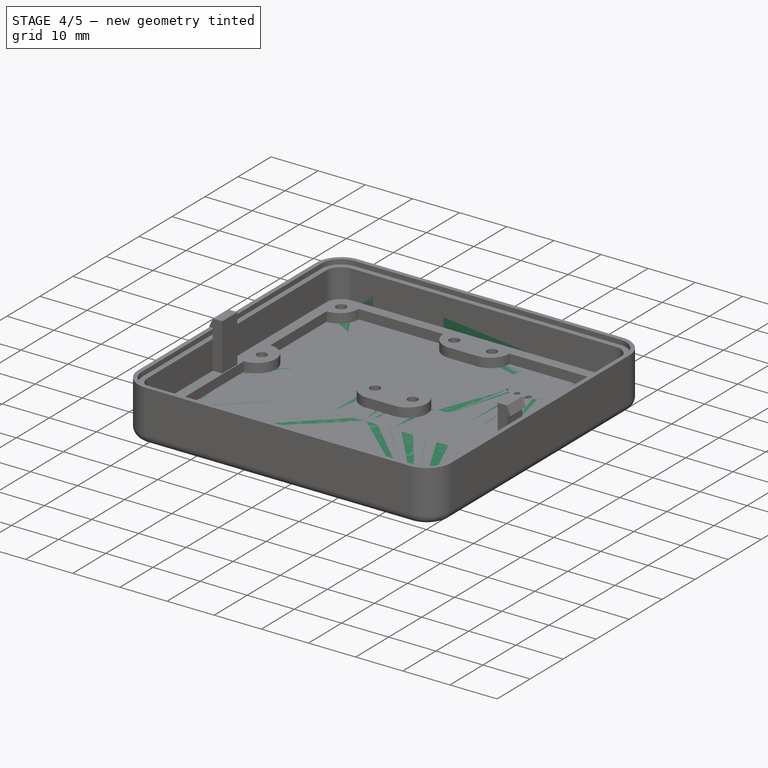
[diagram: stage 4 of 5 — iso view after this stage's code; geometry added in this stage tinted green]
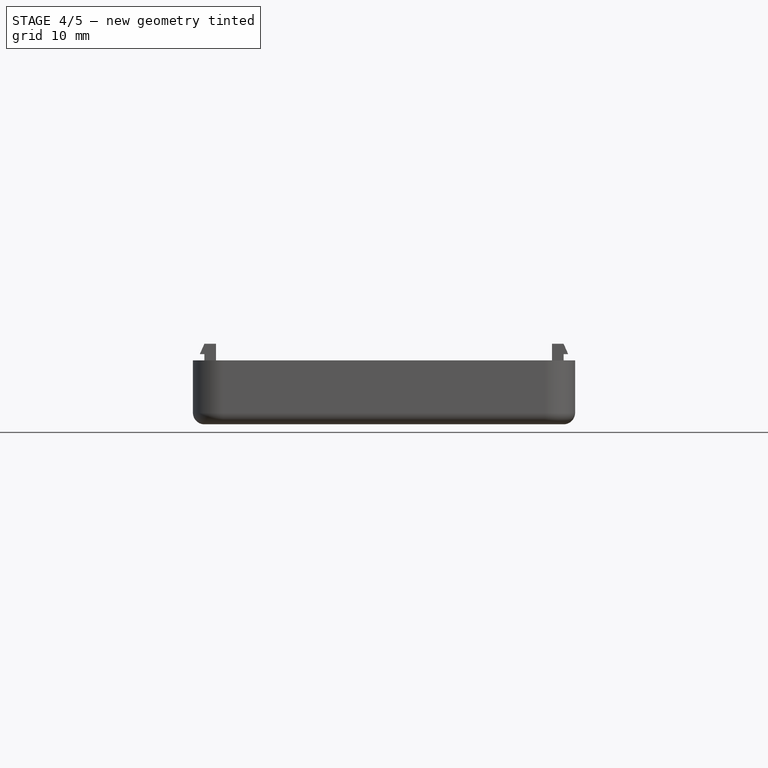
[diagram: stage 4 of 5 — front view after this stage's code; geometry added in this stage tinted green]
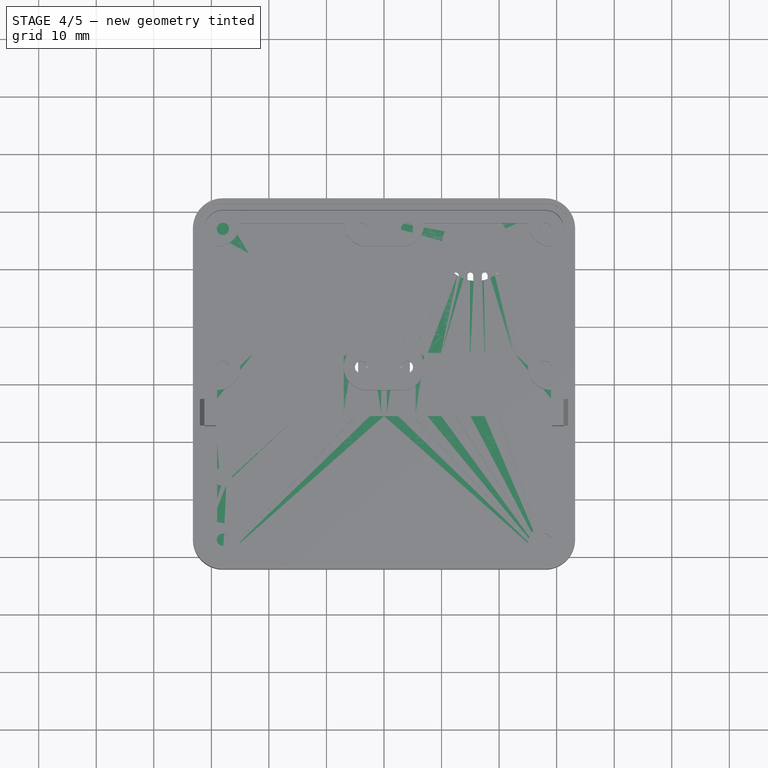
[diagram: stage 4 of 5 — top view after this stage's code; geometry added in this stage tinted green]
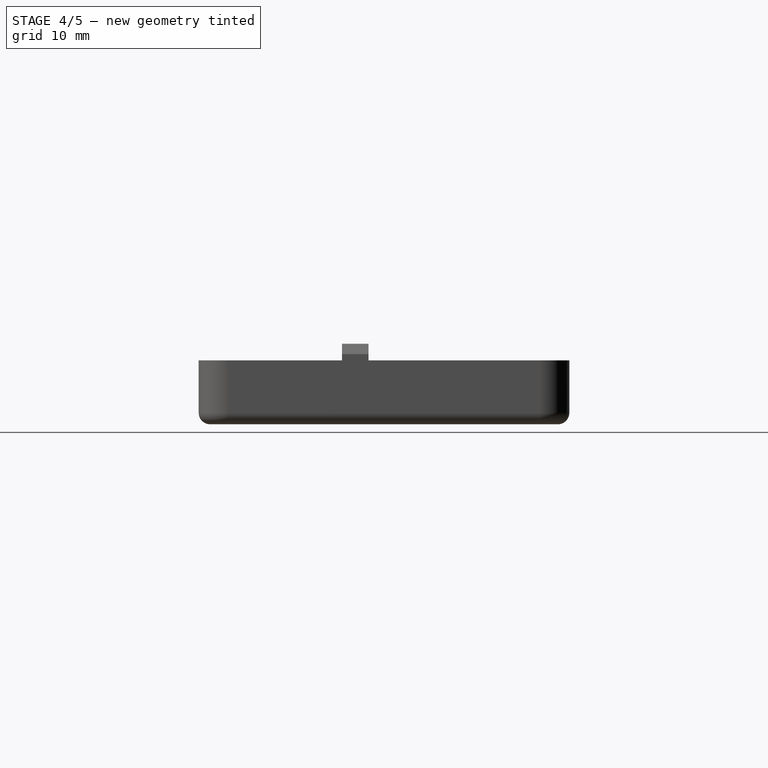
[diagram: stage 4 of 5 — right view after this stage's code; geometry added in this stage tinted green]
FEATURE [Sketcher::SketchObject] Sketch013
  FullyConstrained = true
  MapMode = 5
  Placement = pos=(0,0,10.1) rot=(0,0,1;0rad)
  Support = -> [Fillet004]
  expr: Constraints[12] = Spreadsheet.BoardCornerRadius + Spreadsheet.BoardTolerance
  expr: Constraints[16] = Spreadsheet.BoardCutoutHeight
  expr: Constraints[17] = Spreadsheet.BoardCutoutWidth
  sketch-geometry (8):
    g0: LineSegment StartX=-28 StartY=30.2 StartZ=0 EndX=28 EndY=30.2 EndZ=0
    g1: LineSegment StartX=31.2 StartY=27 StartZ=0 EndX=31.2 EndY=-27 EndZ=0
    g2: LineSegment StartX=28 StartY=-30.2 StartZ=0 EndX=-28 EndY=-30.2 EndZ=0
    g3: LineSegment StartX=-31.2 StartY=-27 StartZ=0 EndX=-31.2 EndY=27 EndZ=0
    g4: ArcOfCircle CenterX=-28 CenterY=27 CenterZ=0 NormalX=0 NormalY=0 NormalZ=1 AngleXU=0 Radius=3.2 StartAngle=1.5708 EndAngle=3.14159
    g5: ArcOfCircle CenterX=28 CenterY=27 CenterZ=0 NormalX=0 NormalY=0 NormalZ=1 AngleXU=0 Radius=3.2 StartAngle=3e-16 EndAngle=1.5708
    g6: ArcOfCircle CenterX=28 CenterY=-27 CenterZ=0 NormalX=0 NormalY=0 NormalZ=1 AngleXU=0 Radius=3.2 StartAngle=4.71239 EndAngle=6.28319
    g7: ArcOfCircle CenterX=-28 CenterY=-27 CenterZ=0 NormalX=0 NormalY=0 NormalZ=1 AngleXU=0 Radius=3.2 StartAngle=3.14159 EndAngle=4.71239
  constraints (19):
    c: Horizontal(g0)
    c: Horizontal(g2)
    c: Vertical(g1)
    c: Vertical(g3)
    c: Tangent(g0,g4) = 1.5708
    c: Tangent(g3,g4) = 1.5708
    c: Tangent(g0,g5) = 1.5708
    c: Tangent(g1,g5) = 1.5708
    c: Tangent(g1,g6) = 1.5708
    c: Tangent(g2,g6) = 1.5708
    c: Tangent(g2,g7) = 1.5708
    c: Tangent(g3,g7) = 1.5708
    c: Radius(g5) = 3.2
    c: Equal(g4,g5)
    c: Equal(g7,g5)
    c: Equal(g6,g5)
    c: DistanceY(g2,g0) = 60.4
    c: DistanceX(g3,g1) = 62.4
    c: Symmetric(g5,g7,g-1)
FEATURE [PartDesign::Pocket] Pocket
  BaseFeature = -> Fillet004
  Direction = (1,1,1)
  Length = 8.1
  Length2 = 100
  Profile = -> Sketch013
  Type = 0
  expr: Length = Spreadsheet.HousingDepth / 2 - Spreadsheet.WallThickness
FEATURE [PartDesign::Body] Body013  label="TopJointBody"
  Group = -> [Sketch014,Pad014]
  Origin = -> Origin013
  Placement = pos=(0,0,9.1) rot=(0,0,1;0rad)
  Tip = -> Pad014
  expr: .Placement.Base.z = Spreadsheet.HousingDepth / 2 - Spreadsheet.WallJointHeight
FEATURE [Part::Cylinder] Cylinder  label="LedCutout"
  Angle = 360
  AttacherType = Attacher::AttachEngine3D
  FirstAngle = 0
  Height = 2
  Placement = pos=(-28,-16,0) rot=(0,0,1;0rad)
  Radius = 1.6
  SecondAngle = 0
  expr: .Placement.Base.x = -(Spreadsheet.BoardWidth / 2 - 3)
  expr: .Placement.Base.y = -Spreadsheet.BoardHeight / 2 + 14
  expr: Height = Spreadsheet.WallThickness
FEATURE [Sketcher::SketchObject] Sketch015
  FullyConstrained = true
  MapMode = 5
  Support = -> [XY_Plane010]
  sketch-geometry (4):
    g0: ArcOfCircle CenterX=0 CenterY=5 CenterZ=0 NormalX=0 NormalY=0 NormalZ=1 AngleXU=0 Radius=0.5 StartAngle=6e-16 EndAngle=3.14159
    g1: ArcOfCircle CenterX=0 CenterY=-5 CenterZ=0 NormalX=0 NormalY=0 NormalZ=1 AngleXU=0 Radius=0.5 StartAngle=3.14159 EndAngle=6.28319
    g2: LineSegment StartX=-0.5 StartY=5 StartZ=0 EndX=-0.5 EndY=-5 EndZ=0
    g3: LineSegment StartX=0.5 StartY=5 StartZ=0 EndX=0.5 EndY=-5 EndZ=0
  constraints (9):
    c: Tangent(g0,g3) = 1.5708
    c: Tangent(g0,g2) = -1.5708
    c: Tangent(g2,g1) = -1.5708
    c: Tangent(g3,g1) = 1.5708
    c: Vertical(g2)
    c: Equal(g0,g1)
    c: DistanceX(g0,g0) = 1
    c: DistanceY(g1,g0) = 10
    c: Symmetric(g0,g1,g-1)
FEATURE [PartDesign::Pad] Pad016
  Direction = (1,1,1)
  Length = 2
  Length2 = 100
  Profile = -> Sketch015
  Type = 0
  expr: Length = Spreadsheet.WallThickness
FEATURE [Part::Extrusion] Extrude003
  Base = -> path1325
  Dir = (0,0,1)
  DirMode = 0
  FaceMakerClass = Part::FaceMakerBullseye
  LengthFwd = 1
  LengthRev = 0
  Solid = false
  Symmetric = false
FEATURE [Part::Extrusion] Extrude004
  Base = -> path1325001
  Dir = (0,0,1)
  DirMode = 0
  FaceMakerClass = Part::FaceMakerBullseye
  LengthFwd = 1
  LengthRev = 0
  Solid = false
  Symmetric = false
FEATURE [Part::MultiFuse] Fusion011  label="ISF"
  Placement = pos=(7,5,0) rot=(0,0,1;0rad)
  Shapes = -> [Extrude003,Extrude004]
FEATURE [Part::MultiFuse] Fusion003  label="TopLockFusion"
  Shapes = -> [Body011,Fusion015]
FEATURE [Part::Cut] Cut010  label="TopJointCut"
  Base = -> Fusion003
  Tool = -> Body013
FEATURE [Part::Cut] Cut011  label="TopLedCut"
  Base = -> Cut010
  Tool = -> Cylinder
FEATURE [Part::Cut] Cut012  label="TopVentilationCut"
  Base = -> Cut011
  Tool = -> Array006
FEATURE [Part::Cut] Cut020  label="TopComponentsCut"
  Base = -> Cut012
  Tool = -> Fusion013
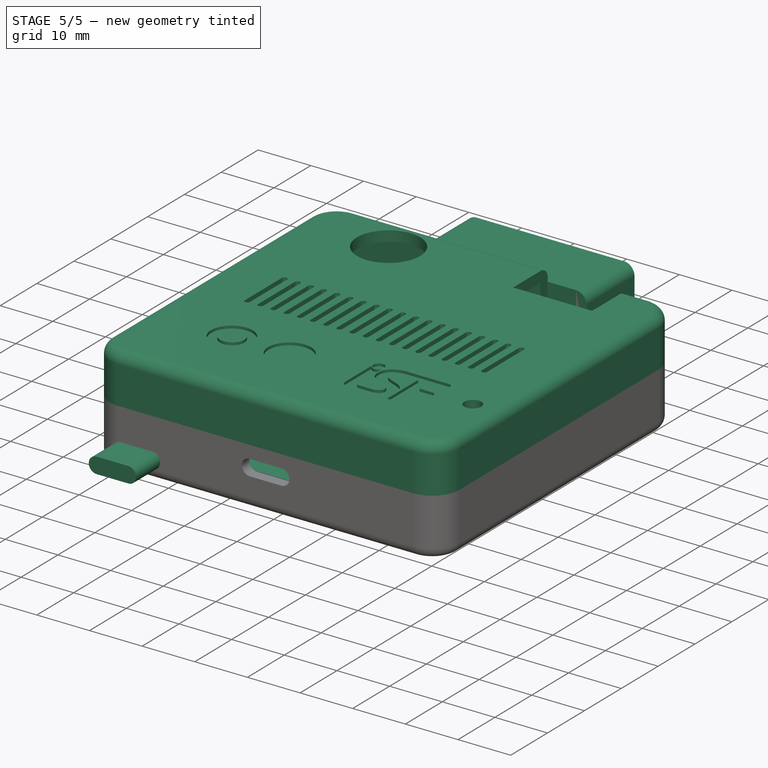
[diagram: stage 5 of 5 — iso view after this stage's code; geometry added in this stage tinted green]
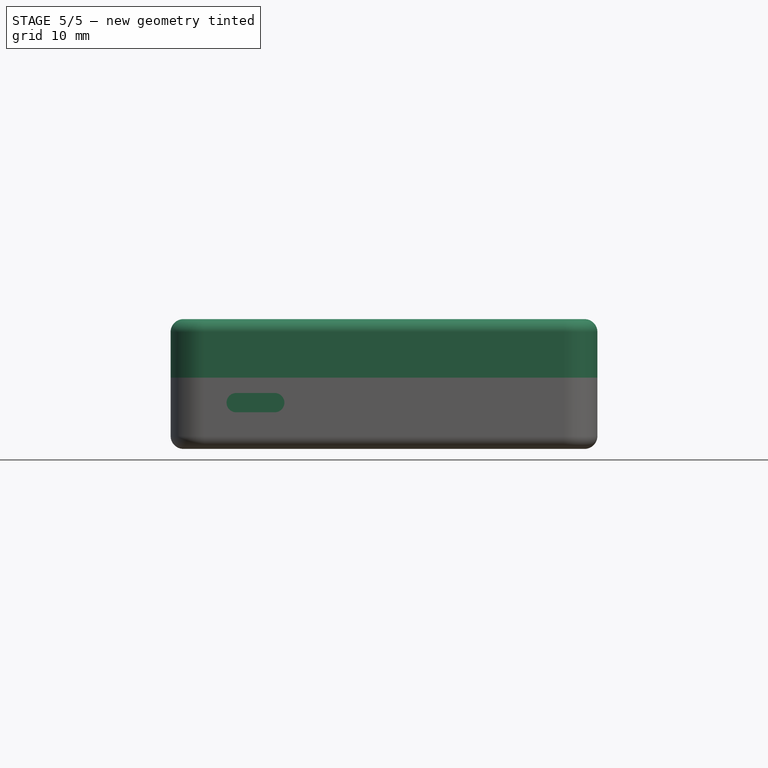
[diagram: stage 5 of 5 — front view after this stage's code; geometry added in this stage tinted green]
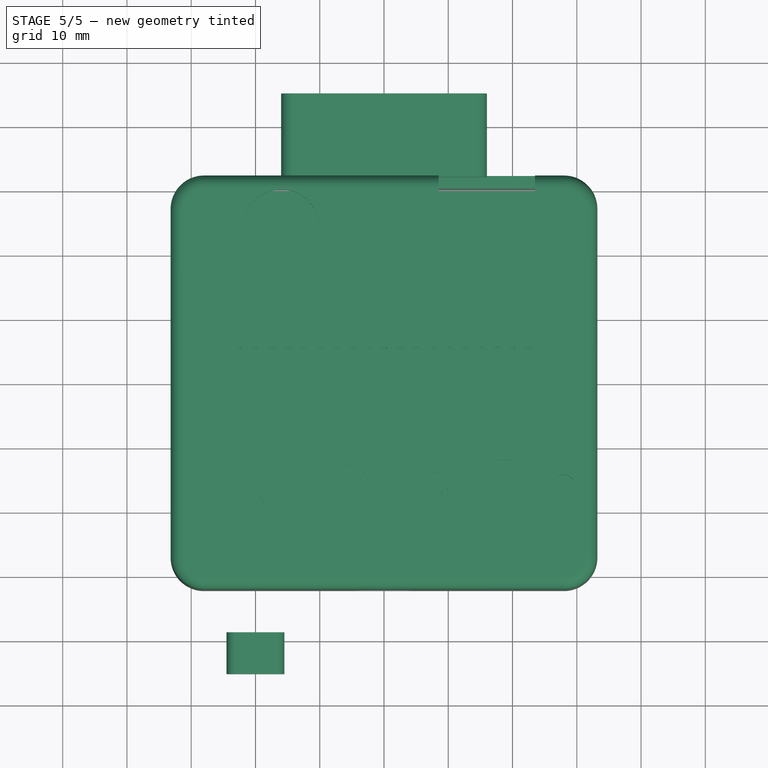
[diagram: stage 5 of 5 — top view after this stage's code; geometry added in this stage tinted green]
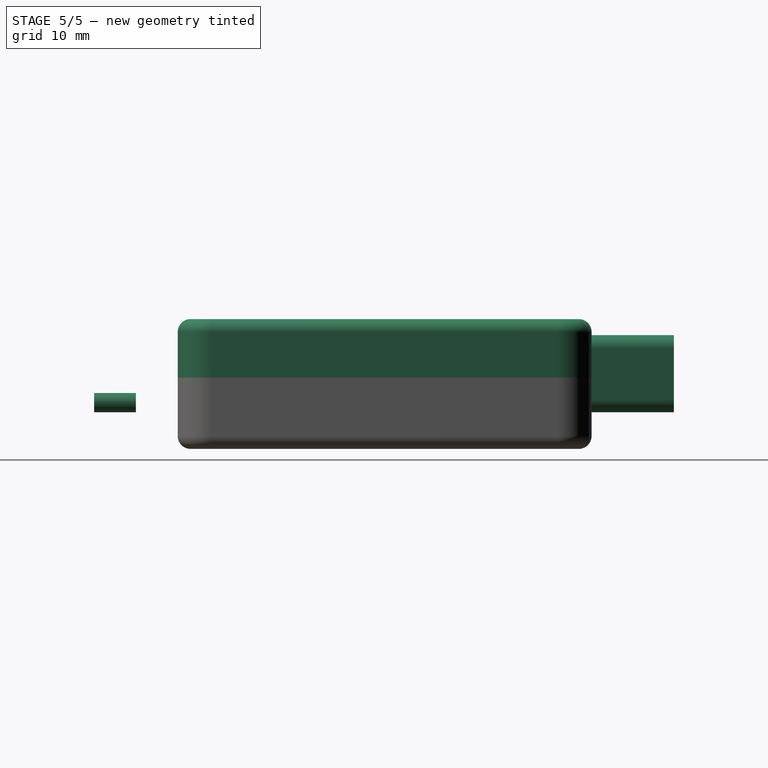
[diagram: stage 5 of 5 — right view after this stage's code; geometry added in this stage tinted green]
FEATURE [PartDesign::Body] Body003  label="ScrewBody"
  Group = -> [Sketch003,Pad003,Sketch004,Pad004]
  Origin = -> Origin003
  Tip = -> Pad004
FEATURE [Sketcher::SketchObject] Sketch005
  FullyConstrained = true
  MapMode = 5
  Support = -> [XY_Plane004]
  expr: Constraints[12] = Spreadsheet.BoardCornerRadius
  expr: Constraints[17] = Spreadsheet.BoardHeight
  expr: Constraints[18] = Spreadsheet.BoardWidth
  expr: Constraints[20] = Spreadsheet.ScrewDiameter
  sketch-geometry (12):
    g0: LineSegment StartX=-28 StartY=30 StartZ=0 EndX=28 EndY=30 EndZ=0
    g1: LineSegment StartX=31 StartY=27 StartZ=0 EndX=31 EndY=-27 EndZ=0
    g2: LineSegment StartX=28 StartY=-30 StartZ=0 EndX=-28 EndY=-30 EndZ=0
    g3: LineSegment StartX=-31 StartY=-27 StartZ=0 EndX=-31 EndY=27 EndZ=0
    g4: ArcOfCircle CenterX=-28 CenterY=27 CenterZ=0 NormalX=0 NormalY=0 NormalZ=1 AngleXU=0 Radius=3 StartAngle=1.5708 EndAngle=3.14159
    g5: ArcOfCircle CenterX=28 CenterY=27 CenterZ=0 NormalX=0 NormalY=0 NormalZ=1 AngleXU=0 Radius=3 StartAngle=0 EndAngle=1.5708
    g6: ArcOfCircle CenterX=28 CenterY=-27 CenterZ=0 NormalX=0 NormalY=0 NormalZ=1 AngleXU=0 Radius=3 StartAngle=4.71239 EndAngle=6.28319
    g7: ArcOfCircle CenterX=-28 CenterY=-27 CenterZ=0 NormalX=0 NormalY=0 NormalZ=1 AngleXU=0 Radius=3 StartAngle=3.14159 EndAngle=4.71239
    g8: Circle CenterX=-28 CenterY=-27 CenterZ=0 NormalX=0 NormalY=0 NormalZ=1 AngleXU=0 Radius=1.05
    g9: Circle CenterX=28 CenterY=-27 CenterZ=0 NormalX=0 NormalY=0 NormalZ=1 AngleXU=0 Radius=1.05
    g10: Circle CenterX=28 CenterY=27 CenterZ=0 NormalX=0 NormalY=0 NormalZ=1 AngleXU=0 Radius=1.05
    g11: Circle CenterX=-28 CenterY=27 CenterZ=0 NormalX=0 NormalY=0 NormalZ=1 AngleXU=0 Radius=1.05
  constraints (27):
    c: Horizontal(g0)
    c: Horizontal(g2)
    c: Vertical(g1)
    c: Vertical(g3)
    c: Tangent(g0,g4) = 1.5708
    c: Tangent(g3,g4) = 1.5708
    c: Tangent(g0,g5) = 1.5708
    c: Tangent(g1,g5) = 1.5708
    c: Tangent(g1,g6) = 1.5708
    c: Tangent(g2,g6) = 1.5708
    c: Tangent(g2,g7) = 1.5708
    c: Tangent(g3,g7) = 1.5708
    c: Radius(g5) = 3
    c: Equal(g4,g5)
    c: Equal(g6,g5)
    c: Equal(g7,g5)
    c: Symmetric(g5,g7,g-1)
    c: DistanceY(g2,g0) = 60
    c: DistanceX(g3,g1) = 62
    c: Coincident(g8,g7)
    c: Diameter(g8) = 2.1
    c: Coincident(g9,g6)
    c: Coincident(g10,g5)
    c: Coincident(g11,g4)
    c: Equal(g11,g8)
    c: Equal(g9,g8)
    c: Equal(g10,g8)
FEATURE [PartDesign::Pad] Pad005
  Direction = (1,1,1)
  Length = 1.65
  Length2 = 100
  Profile = -> Sketch005
  Type = 0
  expr: Length = 1.65
FEATURE [PartDesign::Body] Body004  label="BoardBody"
  Group = -> [Sketch005,Pad005]
  Origin = -> Origin004
  Tip = -> Pad005
FEATURE [Sketcher::SketchObject] Sketch006
  FullyConstrained = true
  MapMode = 5
  Placement = pos=(0,0,0) rot=(1,0,0;1.5708rad)
  Support = -> [XZ_Plane005]
  sketch-geometry (8):
    g0: LineSegment StartX=-14 StartY=6 StartZ=0 EndX=14 EndY=6 EndZ=0
    g1: LineSegment StartX=16 StartY=4 StartZ=0 EndX=16 EndY=-4 EndZ=0
    g2: LineSegment StartX=14 StartY=-6 StartZ=0 EndX=-14 EndY=-6 EndZ=0
    g3: LineSegment StartX=-16 StartY=-4 StartZ=0 EndX=-16 EndY=4 EndZ=0
    g4: ArcOfCircle CenterX=-14 CenterY=4 CenterZ=0 NormalX=0 NormalY=0 NormalZ=1 AngleXU=0 Radius=2 StartAngle=1.5708 EndAngle=3.14159
    g5: ArcOfCircle CenterX=14 CenterY=4 CenterZ=0 NormalX=0 NormalY=0 NormalZ=1 AngleXU=0 Radius=2 StartAngle=0 EndAngle=1.5708
    g6: ArcOfCircle CenterX=14 CenterY=-4 CenterZ=0 NormalX=0 NormalY=0 NormalZ=1 AngleXU=0 Radius=2 StartAngle=4.71239 EndAngle=6.28319
    g7: ArcOfCircle CenterX=-14 CenterY=-4 CenterZ=0 NormalX=0 NormalY=0 NormalZ=1 AngleXU=0 Radius=2 StartAngle=3.14159 EndAngle=4.71239
  constraints (19):
    c: Horizontal(g0)
    c: Horizontal(g2)
    c: Vertical(g1)
    c: Vertical(g3)
    c: Tangent(g0,g4) = 1.5708
    c: Tangent(g3,g4) = 1.5708
    c: Tangent(g0,g5) = 1.5708
    c: Tangent(g1,g5) = 1.5708
    c: Tangent(g1,g6) = 1.5708
    c: Tangent(g2,g6) = 1.5708
    c: Tangent(g2,g7) = 1.5708
    c: Tangent(g3,g7) = 1.5708
    c: Radius(g5) = 2
    c: Equal(g6,g5)
    c: Equal(g7,g5)
    c: Equal(g4,g5)
    c: Symmetric(g5,g7,g-1)
    c: DistanceX(g3,g1) = 32
    c: DistanceY(g2,g0) = 12
FEATURE [PartDesign::Pad] Pad006
  Direction = (1,1,1)
  Length = 13
  Length2 = 100
  Placement = pos=(0,0,0) rot=(1,0,0;1.5708rad)
  Profile = -> Sketch006
  Type = 0
FEATURE [PartDesign::Body] Body005  label="ConnectorBody"
  Group = -> [Sketch006,Pad006]
  Origin = -> Origin005
  Placement = pos=(0,45,7.65) rot=(0,0,1;0rad)
  Tip = -> Pad006
FEATURE [Sketcher::SketchObject] Sketch007
  FullyConstrained = true
  MapMode = 5
  Placement = pos=(0,0,0) rot=(1,0,0;1.5708rad)
  Support = -> [XZ_Plane006]
  sketch-geometry (4):
    g0: ArcOfCircle CenterX=-3 CenterY=5.05e-14 CenterZ=0 NormalX=0 NormalY=0 NormalZ=1 AngleXU=0 Radius=1.5 StartAngle=1.5708 EndAngle=4.71239
    g1: ArcOfCircle CenterX=3 CenterY=-5.05e-14 CenterZ=0 NormalX=0 NormalY=0 NormalZ=1 AngleXU=0 Radius=1.5 StartAngle=4.71239 EndAngle=7.85398
    g2: LineSegment StartX=-3 StartY=-1.5 StartZ=0 EndX=3 EndY=-1.5 EndZ=0
    g3: LineSegment StartX=-3 StartY=1.5 StartZ=0 EndX=3 EndY=1.5 EndZ=0
  constraints (9):
    c: Tangent(g0,g3) = 1.5708
    c: Tangent(g0,g2) = -1.5708
    c: Tangent(g2,g1) = -1.5708
    c: Tangent(g3,g1) = 1.5708
    c: Horizontal(g2)
    c: Equal(g0,g1)
    c: DistanceX(g0,g1) = 6
    c: Radius(g0) = 1.5
    c: Symmetric(g1,g0,g-1)
FEATURE [PartDesign::Pad] Pad007
  Direction = (1,1,1)
  Length = 6.5
  Length2 = 100
  Placement = pos=(0,0,0) rot=(1,0,0;1.5708rad)
  Profile = -> Sketch007
  Type = 0
FEATURE [PartDesign::Body] Body006  label="UsbBody"
  Group = -> [Sketch007,Pad007]
  Origin = -> Origin006
  Placement = pos=(-20,-38.7,3.15) rot=(0,0,1;0rad)
  Tip = -> Pad007
FEATURE [Part::MultiFuse] Fusion  label="BoardPart"
  Placement = pos=(0,0,4.05) rot=(0,0,1;0rad)
  Shapes = -> [Body004,Body005,Body006]
  expr: .Placement.Base.z = Spreadsheet.WallThickness + Spreadsheet.SinkDepth + 0.05
FEATURE [Part::Feature] path866
  shape: bbox 8.135 x 8.039 x 2e-07 mm, 1 faces, 0 solids (baked)
FEATURE [Part::Feature] path866001
  shape: bbox 7.919 x 7.944 x 2e-07 mm, 1 faces, 0 solids (baked)
FEATURE [Part::Feature] path866002
  shape: bbox 4.777 x 4.695 x 2e-07 mm, 1 faces, 0 solids (baked)
FEATURE [Part::Feature] path1325
  shape: bbox 14.41 x 9.958 x 2e-07 mm, 1 faces, 0 solids (baked)
FEATURE [Part::Feature] path1325001
  Placement = pos=(0,0.1,0) rot=(0,0,1;0rad)
  shape: bbox 2 x 1.992 x 2e-07 mm, 1 faces, 0 solids (baked)
FEATURE [Part::Extrusion] Extrude
  Base = -> path866
  Dir = (0,0,1)
  DirMode = 0
  FaceMakerClass = Part::FaceMakerBullseye
  LengthFwd = 1
  LengthRev = 0
  Solid = false
  Symmetric = false
FEATURE [Part::Extrusion] Extrude001
  Base = -> path866001
  Dir = (0,0,1)
  DirMode = 0
  FaceMakerClass = Part::FaceMakerBullseye
  LengthFwd = 1
  LengthRev = 0
  Solid = false
  Symmetric = false
FEATURE [Part::Extrusion] Extrude002
  Base = -> path866002
  Dir = (0,0,1)
  DirMode = 0
  FaceMakerClass = Part::FaceMakerBullseye
  LengthFwd = 1
  LengthRev = 0
  Solid = false
  Symmetric = false
FEATURE [Part::Cut] Cut019
  Base = -> Extrude001
  Tool = -> Extrude002
FEATURE [Part::MultiFuse] Fusion010  label="H-BRS"
  Placement = pos=(-21,4,0) rot=(0,0,1;0rad)
  Shapes = -> [Extrude,Cut019]
FEATURE [Part::MultiFuse] Fusion012  label="Logos"
  Placement = pos=(0,-17,0.5) rot=(0,1,0;3.14159rad)
  Shapes = -> [Fusion010,Fusion011]
FEATURE [Part::Cut] Cut021  label="TopLogosCut"
  Base = -> Cut020
  Placement = pos=(0,0,20.2) rot=(0,1,0;3.14159rad)
  Tool = -> Fusion012
  expr: .Placement.Base.z = Spreadsheet.HousingDepth
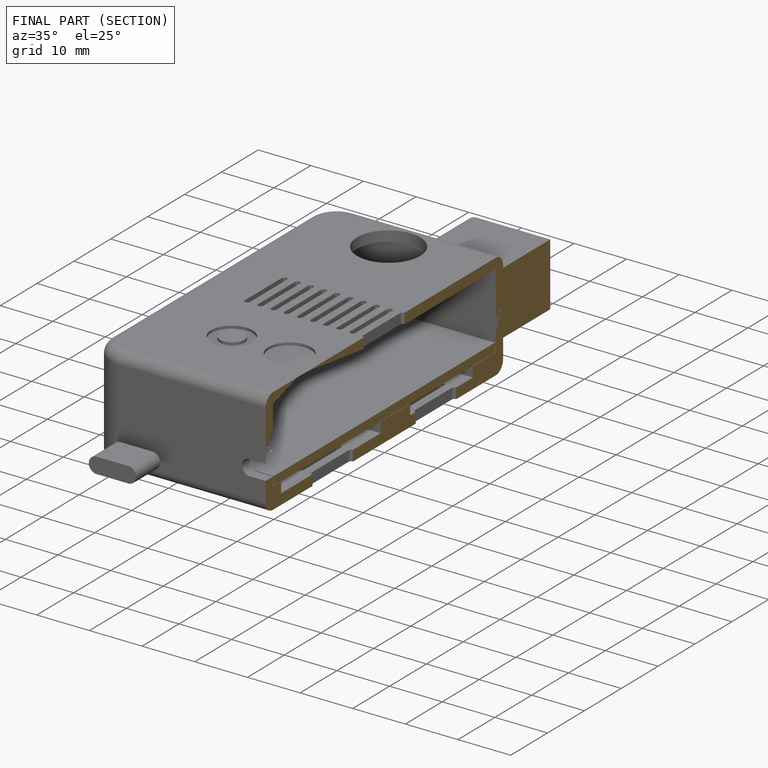
[diagram: finished part — half-section view (interior)]
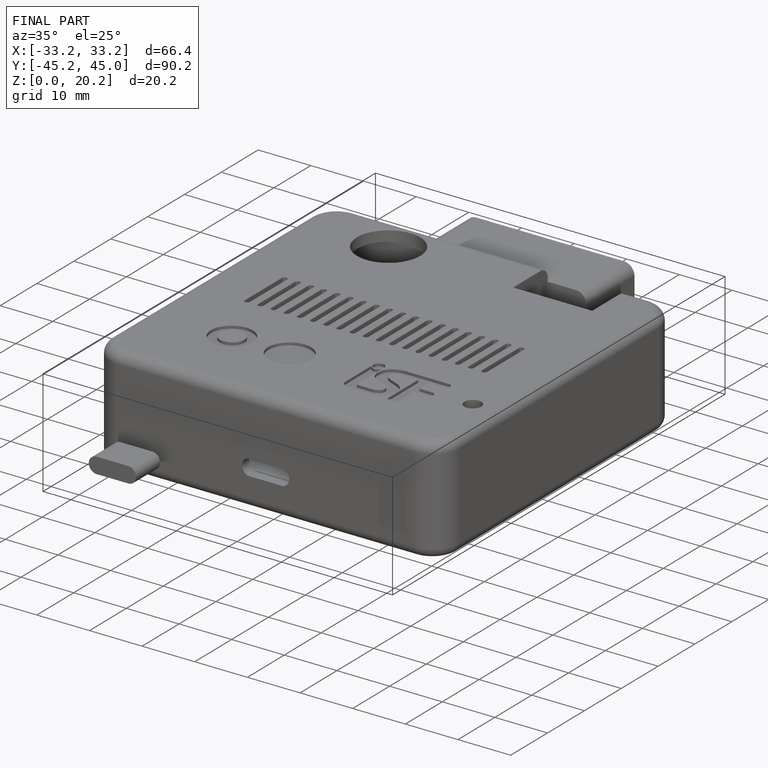
[diagram: finished part — iso view with bounding-box wireframe]
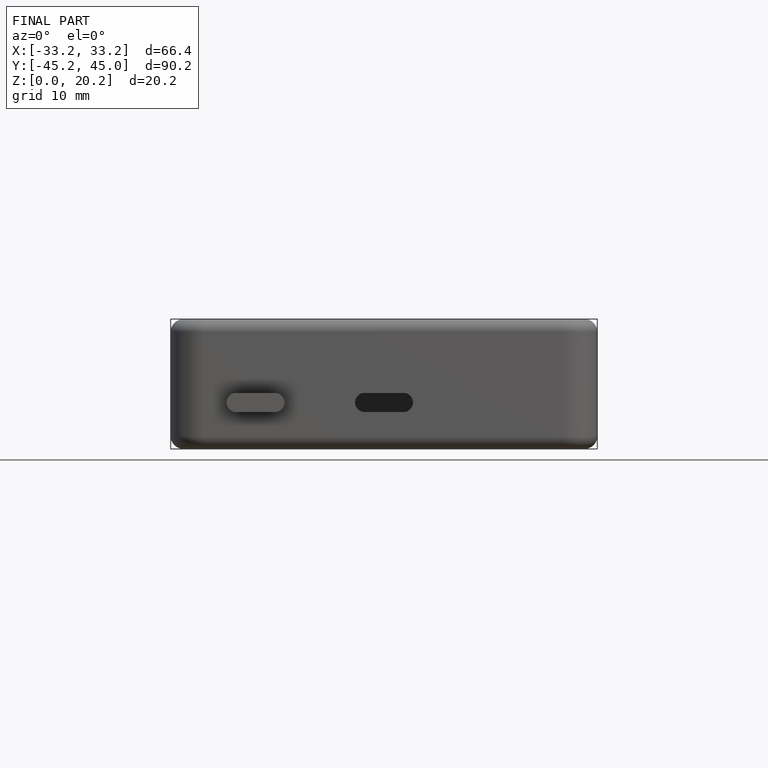
[diagram: finished part — front view with bounding-box wireframe]
